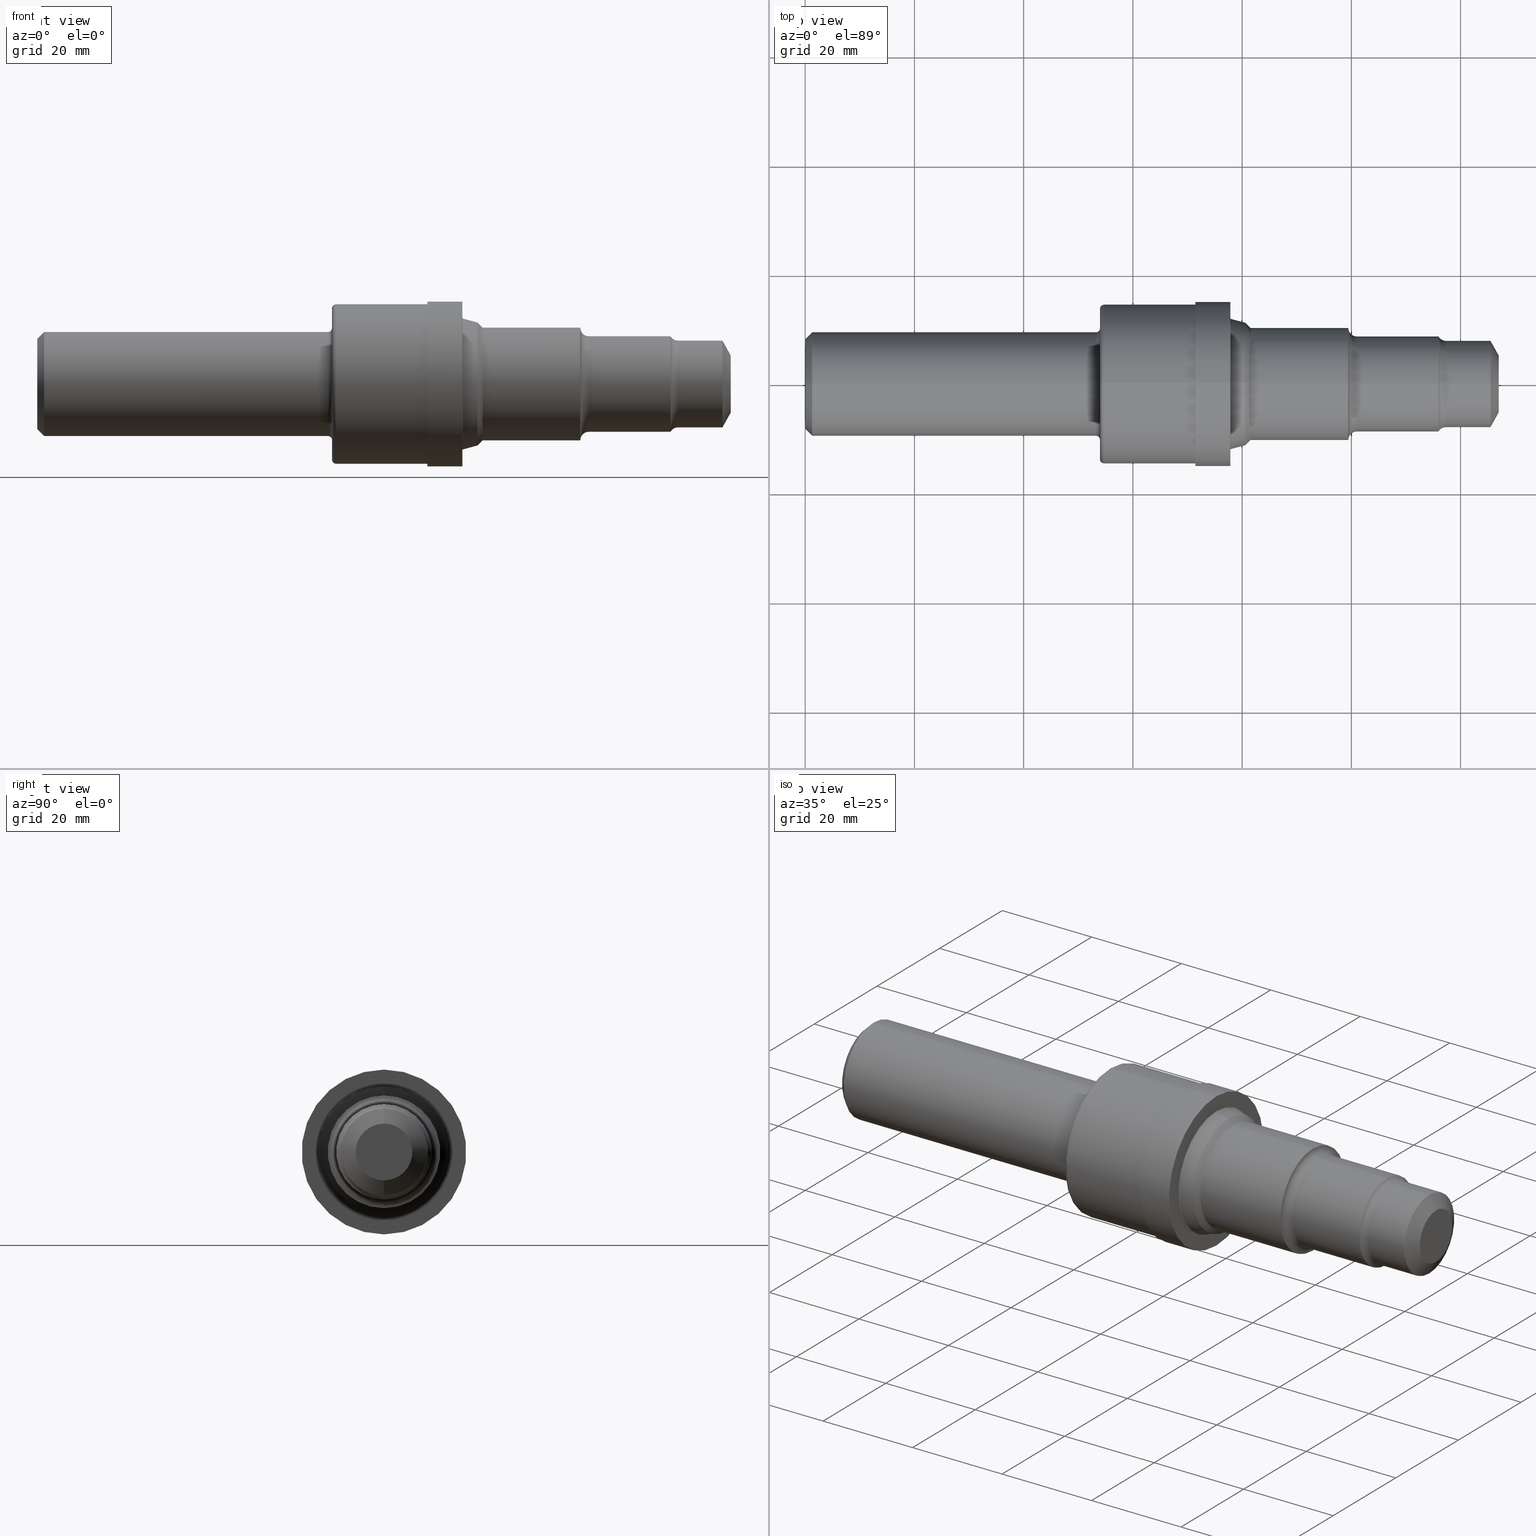
[diagram: canonical four-view strip — front | top / right | iso, engineering-drawing reading convention]
A machine part, canonical four-view strip (front | top / right | iso — engineering-drawing reading convention). The complete STEP part file that produces these views, byte-faithful:
ISO-10303-21;
HEADER;
FILE_DESCRIPTION (( 'STEP AP214' ),
    '1' );
FILE_NAME ('C-10-3-FINISH-X8.STEP',
    '2020-02-03T20:45:43',
    ( '' ),
    ( '' ),
    'SwSTEP 2.0',
    'SolidWorks 2018',
    '' );
FILE_SCHEMA (( 'AUTOMOTIVE_DESIGN' ));
ENDSEC;

DATA;
#1 = ADVANCED_FACE ( 'NONE', ( #759, #676 ), #279, .F. ) ;
#2 = DIRECTION ( 'NONE',  ( 1.000000000000000000, 0.0000000000000000000, 0.0000000000000000000 ) ) ;
#3 = CIRCLE ( 'NONE', #414, 0.3128999999999999559 ) ;
#4 = EDGE_LOOP ( 'NONE', ( #939, #760, #190, #421 ) ) ;
#5 = AXIS2_PLACEMENT_3D ( 'NONE', #913, #435, #122 ) ;
#6 = DIRECTION ( 'NONE',  ( 1.000000000000000000, 0.0000000000000000000, 0.0000000000000000000 ) ) ;
#7 = DIRECTION ( 'NONE',  ( -0.9659258262890689783, 0.0000000000000000000, 0.2588190451025179639 ) ) ;
#8 = CIRCLE ( 'NONE', #459, 0.03000000000000002318 ) ;
#9 = ORIENTED_EDGE ( 'NONE', *, *, #596, .T. ) ;
#10 = CARTESIAN_POINT ( 'NONE',  ( 5.000000000000000000, 3.169123441831430899E-17, -0.2046571346837141592 ) ) ;
#11 = EDGE_CURVE ( 'NONE', #188, #801, #167, .T. ) ;
#12 = CARTESIAN_POINT ( 'NONE',  ( 3.070558857161731048, 5.812574542524129798E-17, -0.4710105087126742474 ) ) ;
#13 = EDGE_LOOP ( 'NONE', ( #269, #431, #85, #46 ) ) ;
#14 = AXIS2_PLACEMENT_3D ( 'NONE', #563, #746, #871 ) ;
#15 = ORIENTED_EDGE ( 'NONE', *, *, #607, .T. ) ;
#16 = TOROIDAL_SURFACE ( 'NONE', #252, 0.4048500000000005428, 0.02999999999999998848 ) ;
#17 = CIRCLE ( 'NONE', #363, 0.06199999999999997874 ) ;
#18 = EDGE_LOOP ( 'NONE', ( #324, #934, #289, #104 ) ) ;
#19 = DIRECTION ( 'NONE',  ( -1.000000000000000000, -0.0000000000000000000, -0.0000000000000000000 ) ) ;
#20 = FACE_OUTER_BOUND ( 'NONE', #245, .T. ) ;
#21 = ORIENTED_EDGE ( 'NONE', *, *, #383, .T. ) ;
#22 = ORIENTED_EDGE ( 'NONE', *, *, #291, .T. ) ;
#23 = DIRECTION ( 'NONE',  ( 0.0000000000000000000, 0.0000000000000000000, 1.000000000000000000 ) ) ;
#24 =( NAMED_UNIT ( * ) PLANE_ANGLE_UNIT ( ) SI_UNIT ( $, .RADIAN. ) );
#25 = ORIENTED_EDGE ( 'NONE', *, *, #383, .F. ) ;
#26 = LINE ( 'NONE', #401, #590 ) ;
#27 = CARTESIAN_POINT ( 'NONE',  ( 2.154999999999999805, 7.041719095097280140E-17, -0.5749999999999998446 ) ) ;
#28 = EDGE_CURVE ( 'NONE', #875, #697, #362, .T. ) ;
#29 = VERTEX_POINT ( 'NONE', #367 ) ;
#30 = CARTESIAN_POINT ( 'NONE',  ( 3.976998709663992493, 0.0000000000000000000, 0.3443999999999999284 ) ) ;
#31 = ORIENTED_EDGE ( 'NONE', *, *, #315, .T. ) ;
#32 =( LENGTH_UNIT ( ) NAMED_UNIT ( * ) SI_UNIT ( $, .METRE. ) );
#33 = ORIENTED_EDGE ( 'NONE', *, *, #398, .T. ) ;
#34 = CARTESIAN_POINT ( 'NONE',  ( 2.813000000000000167, 0.0000000000000000000, 0.5750000000000000666 ) ) ;
#35 = FACE_OUTER_BOUND ( 'NONE', #292, .T. ) ;
#36 = EDGE_LOOP ( 'NONE', ( #63, #458 ) ) ;
#37 = DIRECTION ( 'NONE',  ( -1.000000000000000000, -0.0000000000000000000, -0.0000000000000000000 ) ) ;
#38 = FILL_AREA_STYLE ('',( #587 ) ) ;
#39 = ORIENTED_EDGE ( 'NONE', *, *, #647, .T. ) ;
#40 = PRESENTATION_LAYER_ASSIGNMENT (  '', '', ( #93 ) ) ;
#41 = DIRECTION ( 'NONE',  ( 0.0000000000000000000, 0.0000000000000000000, 1.000000000000000000 ) ) ;
#42 = EDGE_LOOP ( 'NONE', ( #387, #48, #260, #774 ) ) ;
#43 = SURFACE_STYLE_USAGE ( .BOTH. , #846 ) ;
#44 = DIRECTION ( 'NONE',  ( -1.000000000000000000, -0.0000000000000000000, -0.0000000000000000000 ) ) ;
#45 = CONICAL_SURFACE ( 'NONE', #870, 0.4435614872174390433, 0.2617993877991466878 ) ;
#46 = ORIENTED_EDGE ( 'NONE', *, *, #575, .T. ) ;
#47 = EDGE_CURVE ( 'NONE', #595, #697, #916, .T. ) ;
#48 = ORIENTED_EDGE ( 'NONE', *, *, #811, .T. ) ;
#49 = UNCERTAINTY_MEASURE_WITH_UNIT (LENGTH_MEASURE( 1.000000000000000082E-05 ), #400, 'distance_accuracy_value', 'NONE');
#50 = VECTOR ( 'NONE', #695, 39.37007874015748854 ) ;
#51 = AXIS2_PLACEMENT_3D ( 'NONE', #477, #703, #309 ) ;
#52 = CARTESIAN_POINT ( 'NONE',  ( 0.0000000000000000000, 0.0000000000000000000, 0.4060000000000000275 ) ) ;
#53 = DIRECTION ( 'NONE',  ( -1.000000000000000000, -0.0000000000000000000, -0.0000000000000000000 ) ) ;
#54 = EDGE_CURVE ( 'NONE', #137, #134, #727, .T. ) ;
#55 = DIRECTION ( 'NONE',  ( -1.000000000000000000, -0.0000000000000000000, -0.0000000000000000000 ) ) ;
#56 = EDGE_LOOP ( 'NONE', ( #757, #91 ) ) ;
#57 = CARTESIAN_POINT ( 'NONE',  ( 2.125000000000000000, 0.5449999999999999289, 0.0000000000000000000 ) ) ;
#58 = EDGE_LOOP ( 'NONE', ( #282, #815, #837, #668 ) ) ;
#59 = ORIENTED_EDGE ( 'NONE', *, *, #11, .F. ) ;
#60 = VECTOR ( 'NONE', #868, 39.37007874015748854 ) ;
#61 = AXIS2_PLACEMENT_3D ( 'NONE', #669, #740, #296 ) ;
#62 = CARTESIAN_POINT ( 'NONE',  ( 0.0000000000000000000, 0.0000000000000000000, 0.0000000000000000000 ) ) ;
#63 = ORIENTED_EDGE ( 'NONE', *, *, #724, .T. ) ;
#64 = EDGE_CURVE ( 'NONE', #689, #597, #136, .T. ) ;
#65 = CARTESIAN_POINT ( 'NONE',  ( 3.072500000000000231, 0.0000000000000000000, 0.0000000000000000000 ) ) ;
#66 = CARTESIAN_POINT ( 'NONE',  ( 0.0000000000000000000, 3.831919834532067466E-17, -0.3128999999999999559 ) ) ;
#67 = ORIENTED_EDGE ( 'NONE', *, *, #369, .F. ) ;
#68 = DIMENSIONAL_EXPONENTS ( 1.000000000000000000, 0.0000000000000000000, 0.0000000000000000000, 0.0000000000000000000, 0.0000000000000000000, 0.0000000000000000000, 0.0000000000000000000 ) ;
#69 = VECTOR ( 'NONE', #133, 39.37007874015748143 ) ;
#70 = ORIENTED_EDGE ( 'NONE', *, *, #28, .F. ) ;
#71 = CARTESIAN_POINT ( 'NONE',  ( 0.0000000000000000000, 0.0000000000000000000, 0.0000000000000000000 ) ) ;
#72 = ORIENTED_EDGE ( 'NONE', *, *, #654, .T. ) ;
#73 = LINE ( 'NONE', #612, #50 ) ;
#74 = CARTESIAN_POINT ( 'NONE',  ( 0.05000000000000000278, 4.590588526603853748E-17, 0.3748500000000000165 ) ) ;
#75 = EDGE_CURVE ( 'NONE', #508, #432, #892, .T. ) ;
#76 = DIRECTION ( 'NONE',  ( 0.0000000000000000000, 0.0000000000000000000, 1.000000000000000000 ) ) ;
#77 =( CONVERSION_BASED_UNIT ( 'INCH', #900 ) LENGTH_UNIT ( ) NAMED_UNIT ( #456 ) );
#78 = CARTESIAN_POINT ( 'NONE',  ( 4.618979162646340342, 0.0000000000000000000, 0.3749000000000000665 ) ) ;
#79 = CARTESIAN_POINT ( 'NONE',  ( 3.173000000000000487, 0.0000000000000000000, 0.0000000000000000000 ) ) ;
#80 =( NAMED_UNIT ( * ) SI_UNIT ( $, .STERADIAN. ) SOLID_ANGLE_UNIT ( ) );
#81 = CARTESIAN_POINT ( 'NONE',  ( 2.125000000000000000, 0.0000000000000000000, 0.4048500000000005428 ) ) ;
#82 = VERTEX_POINT ( 'NONE', #883 ) ;
#83 = DIRECTION ( 'NONE',  ( -1.000000000000000000, -0.0000000000000000000, -0.0000000000000000000 ) ) ;
#84 = EDGE_CURVE ( 'NONE', #343, #825, #504, .T. ) ;
#85 = ORIENTED_EDGE ( 'NONE', *, *, #336, .T. ) ;
#86 = ORIENTED_EDGE ( 'NONE', *, *, #283, .F. ) ;
#87 = ORIENTED_EDGE ( 'NONE', *, *, #897, .F. ) ;
#88 = CIRCLE ( 'NONE', #733, 0.4060000000000000275 ) ;
#89 = AXIS2_PLACEMENT_3D ( 'NONE', #480, #572, #232 ) ;
#90 = CIRCLE ( 'NONE', #61, 0.007499999999999851404 ) ;
#91 = ORIENTED_EDGE ( 'NONE', *, *, #84, .F. ) ;
#92 = AXIS2_PLACEMENT_3D ( 'NONE', #62, #661, #500 ) ;
#93 = STYLED_ITEM ( 'NONE', ( #346 ), #397 ) ;
#94 = ORIENTED_EDGE ( 'NONE', *, *, #64, .F. ) ;
#95 = DIRECTION ( 'NONE',  ( 0.0000000000000000000, 0.0000000000000000000, 1.000000000000000000 ) ) ;
#96 = SURFACE_STYLE_FILL_AREA ( #38 ) ;
#97 = EDGE_CURVE ( 'NONE', #134, #207, #325, .T. ) ;
#98 = AXIS2_PLACEMENT_3D ( 'NONE', #619, #546, #787 ) ;
#99 = DIRECTION ( 'NONE',  ( 0.0000000000000000000, 0.0000000000000000000, 1.000000000000000000 ) ) ;
#100 = CARTESIAN_POINT ( 'NONE',  ( 0.0000000000000000000, 4.972066004538254721E-17, -0.4060000000000000275 ) ) ;
#101 = CARTESIAN_POINT ( 'NONE',  ( 2.094999999999999751, 4.957982566348065676E-17, -0.4048500000000005428 ) ) ;
#102 = CARTESIAN_POINT ( 'NONE',  ( 3.173000000000000487, 5.600138337028097266E-17, -0.4435614872174390433 ) ) ;
#103 = AXIS2_PLACEMENT_3D ( 'NONE', #65, #730, #361 ) ;
#104 = ORIENTED_EDGE ( 'NONE', *, *, #336, .F. ) ;
#105 = CYLINDRICAL_SURFACE ( 'NONE', #263, 0.4060000000000000275 ) ;
#106 = CARTESIAN_POINT ( 'NONE',  ( 4.618979162646340342, 0.0000000000000000000, 0.0000000000000000000 ) ) ;
#107 = CONICAL_SURFACE ( 'NONE', #51, 0.2046571346837141592, 1.064650843716543394 ) ;
#108 = DIRECTION ( 'NONE',  ( 0.0000000000000000000, -1.000000000000000000, 0.0000000000000000000 ) ) ;
#109 = CARTESIAN_POINT ( 'NONE',  ( 3.065000000000000391, 0.0000000000000000000, 0.0000000000000000000 ) ) ;
#110 = DIRECTION ( 'NONE',  ( -1.000000000000000000, -0.0000000000000000000, -0.0000000000000000000 ) ) ;
#111 = DIRECTION ( 'NONE',  ( 0.0000000000000000000, 0.0000000000000000000, 1.000000000000000000 ) ) ;
#112 = AXIS2_PLACEMENT_3D ( 'NONE', #920, #124, #941 ) ;
#113 = CARTESIAN_POINT ( 'NONE',  ( 4.618979162646340342, 4.591200850003427854E-17, -0.3749000000000000665 ) ) ;
#114 = DIRECTION ( 'NONE',  ( -1.000000000000000000, -0.0000000000000000000, -0.0000000000000000000 ) ) ;
#115 = LINE ( 'NONE', #502, #481 ) ;
#116 = EDGE_CURVE ( 'NONE', #470, #276, #115, .T. ) ;
#117 = EDGE_LOOP ( 'NONE', ( #827, #586, #246, #657 ) ) ;
#118 = CARTESIAN_POINT ( 'NONE',  ( 3.210561487217439502, 0.0000000000000000000, 0.4060000000000000275 ) ) ;
#119 = DIRECTION ( 'NONE',  ( 0.0000000000000000000, 0.0000000000000000000, 1.000000000000000000 ) ) ;
#120 = AXIS2_PLACEMENT_3D ( 'NONE', #370, #6, #802 ) ;
#121 = ORIENTED_EDGE ( 'NONE', *, *, #159, .T. ) ;
#122 = DIRECTION ( 'NONE',  ( 0.0000000000000000000, 0.0000000000000000000, 1.000000000000000000 ) ) ;
#123 = LINE ( 'NONE', #538, #877 ) ;
#124 = DIRECTION ( 'NONE',  ( -1.000000000000000000, -0.0000000000000000000, -0.0000000000000000000 ) ) ;
#125 = ADVANCED_FACE ( 'NONE', ( #688 ), #664, .T. ) ;
#126 = CARTESIAN_POINT ( 'NONE',  ( 0.0000000000000000000, 0.0000000000000000000, -0.3248500000000001386 ) ) ;
#127 = VECTOR ( 'NONE', #344, 39.37007874015748143 ) ;
#128 = ORIENTED_EDGE ( 'NONE', *, *, #75, .F. ) ;
#129 = FACE_OUTER_BOUND ( 'NONE', #58, .T. ) ;
#130 = DIRECTION ( 'NONE',  ( 0.0000000000000000000, 0.0000000000000000000, 1.000000000000000000 ) ) ;
#131 = DIRECTION ( 'NONE',  ( -1.000000000000000000, -0.0000000000000000000, -0.0000000000000000000 ) ) ;
#132 = CARTESIAN_POINT ( 'NONE',  ( 3.210561487217439502, 4.972066004538254721E-17, -0.4060000000000000275 ) ) ;
#133 = DIRECTION ( 'NONE',  ( -1.000000000000000000, -0.0000000000000000000, -0.0000000000000000000 ) ) ;
#134 = VERTEX_POINT ( 'NONE', #718 ) ;
#135 = CARTESIAN_POINT ( 'NONE',  ( 2.154999999999999805, 6.674325055353073759E-17, -0.5449999999999999289 ) ) ;
#136 = LINE ( 'NONE', #454, #709 ) ;
#137 = VERTEX_POINT ( 'NONE', #592 ) ;
#138 = CARTESIAN_POINT ( 'NONE',  ( 0.0000000000000000000, 0.0000000000000000000, 0.0000000000000000000 ) ) ;
#139 = ORIENTED_EDGE ( 'NONE', *, *, #291, .F. ) ;
#140 = ADVANCED_FACE ( 'NONE', ( #299 ), #280, .T. ) ;
#141 = AXIS2_PLACEMENT_3D ( 'NONE', #371, #738, #852 ) ;
#142 = CIRCLE ( 'NONE', #98, 0.3443999999999999284 ) ;
#143 = COLOUR_RGB ( '',0.7529411764705882248, 0.7529411764705882248, 0.7529411764705882248 ) ;
#144 = AXIS2_PLACEMENT_3D ( 'NONE', #692, #258, #769 ) ;
#145 = DIRECTION ( 'NONE',  ( 0.0000000000000000000, 0.0000000000000000000, 1.000000000000000000 ) ) ;
#146 = EDGE_CURVE ( 'NONE', #734, #597, #462, .T. ) ;
#147 = DIRECTION ( 'NONE',  ( -1.000000000000000000, -0.0000000000000000000, -0.0000000000000000000 ) ) ;
#148 = DIRECTION ( 'NONE',  ( 0.0000000000000000000, -1.000000000000000000, 0.0000000000000000000 ) ) ;
#149 = DIRECTION ( 'NONE',  ( 0.0000000000000000000, 0.0000000000000000000, 1.000000000000000000 ) ) ;
#150 =( GEOMETRIC_REPRESENTATION_CONTEXT ( 3 ) GLOBAL_UNCERTAINTY_ASSIGNED_CONTEXT ( ( #49 ) ) GLOBAL_UNIT_ASSIGNED_CONTEXT ( ( #400, #382, #919 ) ) REPRESENTATION_CONTEXT ( 'NONE', 'WORKASPACE' ) );
#151 = DIRECTION ( 'NONE',  ( -1.000000000000000000, -0.0000000000000000000, -0.0000000000000000000 ) ) ;
#152 = LINE ( 'NONE', #886, #904 ) ;
#153 = ORIENTED_EDGE ( 'NONE', *, *, #561, .T. ) ;
#154 = CARTESIAN_POINT ( 'NONE',  ( 5.000000000000000000, 0.0000000000000000000, 0.2046571346837141592 ) ) ;
#155 = DIRECTION ( 'NONE',  ( 0.0000000000000000000, 0.0000000000000000000, -1.000000000000000000 ) ) ;
#156 = DIRECTION ( 'NONE',  ( 0.0000000000000000000, 0.0000000000000000000, 1.000000000000000000 ) ) ;
#157 = CIRCLE ( 'NONE', #924, 0.06200000000000011752 ) ;
#158 = CARTESIAN_POINT ( 'NONE',  ( 3.065000000000000391, 7.274401986935277967E-17, -0.5939999999999999725 ) ) ;
#159 = EDGE_CURVE ( 'NONE', #843, #276, #90, .T. ) ;
#160 = CIRCLE ( 'NONE', #465, 0.4435614872174390433 ) ;
#161 = DIRECTION ( 'NONE',  ( 0.0000000000000000000, 0.0000000000000000000, 1.000000000000000000 ) ) ;
#162 = CARTESIAN_POINT ( 'NONE',  ( 0.0000000000000000000, 0.0000000000000000000, 0.0000000000000000000 ) ) ;
#163 = DIRECTION ( 'NONE',  ( 0.0000000000000000000, -1.000000000000000000, 0.0000000000000000000 ) ) ;
#164 = ORIENTED_EDGE ( 'NONE', *, *, #268, .T. ) ;
#165 = ADVANCED_FACE ( 'NONE', ( #527 ), #45, .T. ) ;
#166 = AXIS2_PLACEMENT_3D ( 'NONE', #878, #83, #161 ) ;
#167 = LINE ( 'NONE', #311, #555 ) ;
#168 = VERTEX_POINT ( 'NONE', #209 ) ;
#169 = CARTESIAN_POINT ( 'NONE',  ( 2.125000000000000000, 0.0000000000000000000, 0.0000000000000000000 ) ) ;
#170 = ORIENTED_EDGE ( 'NONE', *, *, #927, .T. ) ;
#171 = FACE_OUTER_BOUND ( 'NONE', #551, .T. ) ;
#172 = ADVANCED_FACE ( 'NONE', ( #636 ), #836, .T. ) ;
#173 = CONICAL_SURFACE ( 'NONE', #392, 0.4060000000000000275, 0.7853981633974482790 ) ;
#174 = EDGE_LOOP ( 'NONE', ( #39, #287 ) ) ;
#175 = DIRECTION ( 'NONE',  ( 0.0000000000000000000, 0.0000000000000000000, 1.000000000000000000 ) ) ;
#176 = EDGE_CURVE ( 'NONE', #189, #893, #438, .T. ) ;
#177 = DIRECTION ( 'NONE',  ( -1.000000000000000000, -0.0000000000000000000, -0.0000000000000000000 ) ) ;
#178 = CIRCLE ( 'NONE', #273, 0.007499999999999851404 ) ;
#179 = AXIS2_PLACEMENT_3D ( 'NONE', #138, #880, #554 ) ;
#180 = ADVANCED_FACE ( 'NONE', ( #856 ), #420, .T. ) ;
#181 = ORIENTED_EDGE ( 'NONE', *, *, #351, .F. ) ;
#182 = CIRCLE ( 'NONE', #569, 0.02999999999999995379 ) ;
#183 =( LENGTH_UNIT ( ) NAMED_UNIT ( * ) SI_UNIT ( $, .METRE. ) );
#184 = DIRECTION ( 'NONE',  ( -1.000000000000000000, -0.0000000000000000000, -0.0000000000000000000 ) ) ;
#185 = EDGE_CURVE ( 'NONE', #137, #712, #609, .T. ) ;
#186 = ORIENTED_EDGE ( 'NONE', *, *, #47, .T. ) ;
#187 = ADVANCED_FACE ( 'NONE', ( #255 ), #583, .T. ) ;
#188 = VERTEX_POINT ( 'NONE', #298 ) ;
#189 = VERTEX_POINT ( 'NONE', #355 ) ;
#190 = ORIENTED_EDGE ( 'NONE', *, *, #478, .T. ) ;
#191 = CARTESIAN_POINT ( 'NONE',  ( 2.125000000000000000, 0.0000000000000000000, 0.5449999999999999289 ) ) ;
#192 = AXIS2_PLACEMENT_3D ( 'NONE', #553, #476, #111 ) ;
#193 = PLANE ( 'NONE',  #179 ) ;
#194 = ADVANCED_FACE ( 'NONE', ( #20 ), #205, .T. ) ;
#195 = ORIENTED_EDGE ( 'NONE', *, *, #654, .F. ) ;
#196 = FACE_OUTER_BOUND ( 'NONE', #4, .T. ) ;
#197 = CIRCLE ( 'NONE', #854, 0.4060000000000000275 ) ;
#198 = ADVANCED_FACE ( 'NONE', ( #395 ), #771, .T. ) ;
#199 = DIRECTION ( 'NONE',  ( 0.7071067811865483499, 8.659560562354922997E-17, 0.7071067811865465735 ) ) ;
#200 = DIRECTION ( 'NONE',  ( -1.000000000000000000, -0.0000000000000000000, -0.0000000000000000000 ) ) ;
#201 = PRODUCT_RELATED_PRODUCT_CATEGORY ( 'part', '', ( #228 ) ) ;
#202 = ADVANCED_FACE ( 'NONE', ( #792 ), #930, .T. ) ;
#203 = DIRECTION ( 'NONE',  ( -0.0000000000000000000, 1.000000000000000000, 1.224646799147353207E-16 ) ) ;
#204 = CARTESIAN_POINT ( 'NONE',  ( 4.565000000000000391, 0.0000000000000000000, 0.0000000000000000000 ) ) ;
#205 = CYLINDRICAL_SURFACE ( 'NONE', #694, 0.4060000000000000275 ) ;
#206 = EDGE_CURVE ( 'NONE', #835, #801, #178, .T. ) ;
#207 = VERTEX_POINT ( 'NONE', #321 ) ;
#208 =( NAMED_UNIT ( * ) PLANE_ANGLE_UNIT ( ) SI_UNIT ( $, .RADIAN. ) );
#209 = CARTESIAN_POINT ( 'NONE',  ( 3.915000000000000036, 4.972066004538254721E-17, -0.4060000000000000275 ) ) ;
#210 = ORIENTED_EDGE ( 'NONE', *, *, #243, .T. ) ;
#211 = CIRCLE ( 'NONE', #531, 0.2046571346837141592 ) ;
#212 = CARTESIAN_POINT ( 'NONE',  ( 3.976998709663992493, 0.0000000000000000000, 0.0000000000000000000 ) ) ;
#213 = ADVANCED_FACE ( 'NONE', ( #374 ), #810, .F. ) ;
#214 = DIRECTION ( 'NONE',  ( 0.0000000000000000000, 0.0000000000000000000, 1.000000000000000000 ) ) ;
#215 = CARTESIAN_POINT ( 'NONE',  ( 0.05000000000000000278, 0.0000000000000000000, 0.0000000000000000000 ) ) ;
#216 = ADVANCED_FACE ( 'NONE', ( #744 ), #353, .T. ) ;
#217 = ORIENTED_EDGE ( 'NONE', *, *, #860, .T. ) ;
#218 = DIRECTION ( 'NONE',  ( -1.000000000000000000, -0.0000000000000000000, -0.0000000000000000000 ) ) ;
#219 = ORIENTED_EDGE ( 'NONE', *, *, #784, .F. ) ;
#220 = AXIS2_PLACEMENT_3D ( 'NONE', #624, #778, #704 ) ;
#221 = DIRECTION ( 'NONE',  ( -1.000000000000000000, -0.0000000000000000000, -0.0000000000000000000 ) ) ;
#222 = ADVANCED_FACE ( 'NONE', ( #234 ), #603, .T. ) ;
#223 = AXIS2_PLACEMENT_3D ( 'NONE', #672, #429, #416 ) ;
#224 = ORIENTED_EDGE ( 'NONE', *, *, #478, .F. ) ;
#225 = VECTOR ( 'NONE', #794, 39.37007874015748854 ) ;
#226 = CONICAL_SURFACE ( 'NONE', #641, 0.2046571346837141592, 1.064650843716543394 ) ;
#227 = DIRECTION ( 'NONE',  ( -1.000000000000000000, -0.0000000000000000000, -0.0000000000000000000 ) ) ;
#228 = PRODUCT ( 'C-10-3-FINISH-X8', 'C-10-3-FINISH-X8', '', ( #354 ) ) ;
#229 = CARTESIAN_POINT ( 'NONE',  ( 0.0000000000000000000, 0.0000000000000000000, 0.5749999999999999556 ) ) ;
#230 = ADVANCED_FACE ( 'NONE', ( #565 ), #226, .T. ) ;
#231 = DIRECTION ( 'NONE',  ( 0.0000000000000000000, 0.0000000000000000000, 1.000000000000000000 ) ) ;
#232 = DIRECTION ( 'NONE',  ( 0.0000000000000000000, 0.0000000000000000000, 1.000000000000000000 ) ) ;
#233 = DIRECTION ( 'NONE',  ( -1.000000000000000000, -0.0000000000000000000, -0.0000000000000000000 ) ) ;
#234 = FACE_OUTER_BOUND ( 'NONE', #42, .T. ) ;
#235 = ORIENTED_EDGE ( 'NONE', *, *, #696, .F. ) ;
#236 = CARTESIAN_POINT ( 'NONE',  ( 4.940000000000000391, 0.0000000000000000000, 0.0000000000000000000 ) ) ;
#237 = DIRECTION ( 'NONE',  ( -1.000000000000000000, -0.0000000000000000000, -0.0000000000000000000 ) ) ;
#238 = VECTOR ( 'NONE', #614, 39.37007874015748143 ) ;
#239 = ORIENTED_EDGE ( 'NONE', *, *, #588, .T. ) ;
#240 = DIRECTION ( 'NONE',  ( -0.0000000000000000000, 0.0000000000000000000, 1.000000000000000000 ) ) ;
#241 = DIRECTION ( 'NONE',  ( -1.000000000000000000, -0.0000000000000000000, -0.0000000000000000000 ) ) ;
#242 = ORIENTED_EDGE ( 'NONE', *, *, #97, .F. ) ;
#243 = EDGE_CURVE ( 'NONE', #343, #137, #152, .T. ) ;
#244 = ORIENTED_EDGE ( 'NONE', *, *, #54, .T. ) ;
#245 = EDGE_LOOP ( 'NONE', ( #217, #526, #404, #942 ) ) ;
#246 = ORIENTED_EDGE ( 'NONE', *, *, #724, .F. ) ;
#247 = DIRECTION ( 'NONE',  ( 0.0000000000000000000, 0.0000000000000000000, 1.000000000000000000 ) ) ;
#248 = FACE_OUTER_BOUND ( 'NONE', #543, .T. ) ;
#249 = AXIS2_PLACEMENT_3D ( 'NONE', #340, #850, #940 ) ;
#250 = DIRECTION ( 'NONE',  ( 0.0000000000000000000, 0.0000000000000000000, 1.000000000000000000 ) ) ;
#251 = ORIENTED_EDGE ( 'NONE', *, *, #464, .F. ) ;
#252 = AXIS2_PLACEMENT_3D ( 'NONE', #926, #656, #646 ) ;
#253 = ORIENTED_EDGE ( 'NONE', *, *, #11, .T. ) ;
#254 = AXIS2_PLACEMENT_3D ( 'NONE', #776, #331, #841 ) ;
#255 = FACE_OUTER_BOUND ( 'NONE', #894, .T. ) ;
#256 = ORIENTED_EDGE ( 'NONE', *, *, #517, .T. ) ;
#257 = DIRECTION ( 'NONE',  ( -1.000000000000000000, -0.0000000000000000000, -0.0000000000000000000 ) ) ;
#258 = DIRECTION ( 'NONE',  ( -1.000000000000000000, -0.0000000000000000000, -0.0000000000000000000 ) ) ;
#259 = EDGE_LOOP ( 'NONE', ( #620, #210, #914, #864 ) ) ;
#260 = ORIENTED_EDGE ( 'NONE', *, *, #684, .T. ) ;
#261 = EDGE_CURVE ( 'NONE', #712, #207, #3, .T. ) ;
#262 = TOROIDAL_SURFACE ( 'NONE', #806, 0.5449999999999999289, 0.02999999999999995379 ) ;
#263 = AXIS2_PLACEMENT_3D ( 'NONE', #917, #37, #41 ) ;
#264 = CARTESIAN_POINT ( 'NONE',  ( 3.070558857161731048, 0.0000000000000000000, 0.4710105087126742474 ) ) ;
#265 = CARTESIAN_POINT ( 'NONE',  ( 2.813000000000000167, 0.0000000000000000000, 0.5939999999999999725 ) ) ;
#266 = PRODUCT_DEFINITION_CONTEXT ( 'detailed design', #393, 'design' ) ;
#267 = DIRECTION ( 'NONE',  ( 0.0000000000000000000, 0.0000000000000000000, 1.000000000000000000 ) ) ;
#268 = EDGE_CURVE ( 'NONE', #758, #508, #17, .T. ) ;
#269 = ORIENTED_EDGE ( 'NONE', *, *, #628, .F. ) ;
#270 = CARTESIAN_POINT ( 'NONE',  ( 3.070558857161731048, 0.0000000000000000000, 0.0000000000000000000 ) ) ;
#271 = ORIENTED_EDGE ( 'NONE', *, *, #47, .F. ) ;
#272 = LINE ( 'NONE', #132, #60 ) ;
#273 = AXIS2_PLACEMENT_3D ( 'NONE', #683, #163, #600 ) ;
#274 = DIRECTION ( 'NONE',  ( 0.0000000000000000000, 0.0000000000000000000, 1.000000000000000000 ) ) ;
#275 = ORIENTED_EDGE ( 'NONE', *, *, #176, .T. ) ;
#276 = VERTEX_POINT ( 'NONE', #12 ) ;
#277 = CARTESIAN_POINT ( 'NONE',  ( 2.125000000000000000, 0.0000000000000000000, 0.0000000000000000000 ) ) ;
#278 = ORIENTED_EDGE ( 'NONE', *, *, #97, .T. ) ;
#279 = PLANE ( 'NONE',  #629 ) ;
#280 = CYLINDRICAL_SURFACE ( 'NONE', #912, 0.3443999999999999284 ) ;
#281 = AXIS2_PLACEMENT_3D ( 'NONE', #57, #2, #579 ) ;
#282 = ORIENTED_EDGE ( 'NONE', *, *, #398, .F. ) ;
#283 = EDGE_CURVE ( 'NONE', #432, #508, #578, .T. ) ;
#284 = CARTESIAN_POINT ( 'NONE',  ( 0.05000000000000000278, 4.590588526603853748E-17, 0.3748500000000000165 ) ) ;
#285 = ORIENTED_EDGE ( 'NONE', *, *, #682, .F. ) ;
#286 = CLOSED_SHELL ( 'NONE', ( #230, #632, #743, #140, #790, #194, #650, #165, #652, #180, #198, #731, #737, #216, #222, #645, #673, #660, #751, #715, #413, #125, #640, #667, #1, #723, #202, #295, #630, #213, #172, #944, #187, #658, #749 ) ) ;
#287 = ORIENTED_EDGE ( 'NONE', *, *, #430, .T. ) ;
#288 = VERTEX_POINT ( 'NONE', #754 ) ;
#289 = ORIENTED_EDGE ( 'NONE', *, *, #261, .T. ) ;
#290 = DIRECTION ( 'NONE',  ( -0.0000000000000000000, 0.0000000000000000000, 1.000000000000000000 ) ) ;
#291 = EDGE_CURVE ( 'NONE', #843, #835, #412, .T. ) ;
#292 = EDGE_LOOP ( 'NONE', ( #181, #642, #15, #224 ) ) ;
#293 = CIRCLE ( 'NONE', #89, 0.3748500000000000165 ) ;
#294 = DIRECTION ( 'NONE',  ( -1.000000000000000000, -0.0000000000000000000, -0.0000000000000000000 ) ) ;
#295 = ADVANCED_FACE ( 'NONE', ( #786 ), #173, .T. ) ;
#296 = DIRECTION ( 'NONE',  ( 0.0000000000000000000, -1.224646799147351975E-16, 1.000000000000000000 ) ) ;
#297 = CARTESIAN_POINT ( 'NONE',  ( 0.05000000000000000278, 0.0000000000000000000, -0.3748500000000000165 ) ) ;
#298 = CARTESIAN_POINT ( 'NONE',  ( 3.173000000000000487, 0.0000000000000000000, 0.4435614872174390433 ) ) ;
#299 = FACE_OUTER_BOUND ( 'NONE', #505, .T. ) ;
#300 = ORIENTED_EDGE ( 'NONE', *, *, #756, .F. ) ;
#301 = EDGE_LOOP ( 'NONE', ( #450, #239, #798, #618 ) ) ;
#302 = AXIS2_PLACEMENT_3D ( 'NONE', #169, #604, #95 ) ;
#303 = ORIENTED_EDGE ( 'NONE', *, *, #833, .F. ) ;
#304 = FACE_OUTER_BOUND ( 'NONE', #13, .T. ) ;
#305 = DIRECTION ( 'NONE',  ( -1.000000000000000000, -0.0000000000000000000, -0.0000000000000000000 ) ) ;
#306 = DIRECTION ( 'NONE',  ( -1.000000000000000000, -0.0000000000000000000, -0.0000000000000000000 ) ) ;
#307 = CARTESIAN_POINT ( 'NONE',  ( 0.0000000000000000000, 0.0000000000000000000, 0.3128999999999999559 ) ) ;
#308 = EDGE_CURVE ( 'NONE', #333, #357, #560, .T. ) ;
#309 = DIRECTION ( 'NONE',  ( 0.0000000000000000000, 0.0000000000000000000, 1.000000000000000000 ) ) ;
#310 = DIRECTION ( 'NONE',  ( 0.0000000000000000000, 0.0000000000000000000, 1.000000000000000000 ) ) ;
#311 = CARTESIAN_POINT ( 'NONE',  ( 3.173000000000000487, 0.0000000000000000000, 0.4435614872174390433 ) ) ;
#312 = APPLICATION_CONTEXT ( 'automotive_design' ) ;
#313 = CARTESIAN_POINT ( 'NONE',  ( 2.094999999999999751, 0.0000000000000000000, 0.0000000000000000000 ) ) ;
#314 = DIRECTION ( 'NONE',  ( 1.000000000000000000, 0.0000000000000000000, 0.0000000000000000000 ) ) ;
#315 = EDGE_CURVE ( 'NONE', #168, #758, #197, .T. ) ;
#316 = AXIS2_PLACEMENT_3D ( 'NONE', #515, #855, #436 ) ;
#317 = CIRCLE ( 'NONE', #457, 0.5449999999999999289 ) ;
#318 = VERTEX_POINT ( 'NONE', #81 ) ;
#319 = FACE_OUTER_BOUND ( 'NONE', #301, .T. ) ;
#320 = DIRECTION ( 'NONE',  ( 1.000000000000000000, 0.0000000000000000000, 0.0000000000000000000 ) ) ;
#321 = CARTESIAN_POINT ( 'NONE',  ( 4.618979162646340342, 0.0000000000000000000, 0.3128999999999999559 ) ) ;
#322 = PRESENTATION_LAYER_ASSIGNMENT (  '', '', ( #639 ) ) ;
#323 = AXIS2_PLACEMENT_3D ( 'NONE', #442, #881, #310 ) ;
#324 = ORIENTED_EDGE ( 'NONE', *, *, #176, .F. ) ;
#325 = LINE ( 'NONE', #307, #873 ) ;
#326 = ORIENTED_EDGE ( 'NONE', *, *, #684, .F. ) ;
#327 = ORIENTED_EDGE ( 'NONE', *, *, #116, .T. ) ;
#328 = FILL_AREA_STYLE ('',( #390 ) ) ;
#329 = CARTESIAN_POINT ( 'NONE',  ( 2.154999999999999805, 0.0000000000000000000, 0.0000000000000000000 ) ) ;
#330 = APPLICATION_PROTOCOL_DEFINITION ( 'draft international standard', 'automotive_design', 1998, #312 ) ;
#331 = DIRECTION ( 'NONE',  ( -1.000000000000000000, -0.0000000000000000000, -0.0000000000000000000 ) ) ;
#332 = LINE ( 'NONE', #154, #127 ) ;
#333 = VERTEX_POINT ( 'NONE', #158 ) ;
#334 = CIRCLE ( 'NONE', #316, 0.3748500000000005161 ) ;
#335 = CARTESIAN_POINT ( 'NONE',  ( 2.813000000000000167, 0.0000000000000000000, 0.0000000000000000000 ) ) ;
#336 = EDGE_CURVE ( 'NONE', #893, #207, #389, .T. ) ;
#337 = DIRECTION ( 'NONE',  ( -1.000000000000000000, -0.0000000000000000000, -0.0000000000000000000 ) ) ;
#338 = CARTESIAN_POINT ( 'NONE',  ( 4.618979162646340342, 0.0000000000000000000, 0.0000000000000000000 ) ) ;
#339 = EDGE_LOOP ( 'NONE', ( #235, #256, #536, #300 ) ) ;
#340 = CARTESIAN_POINT ( 'NONE',  ( 0.05000000000000000278, 0.0000000000000000000, 0.0000000000000000000 ) ) ;
#341 = VECTOR ( 'NONE', #507, 39.37007874015748143 ) ;
#342 = DIRECTION ( 'NONE',  ( -1.000000000000000000, -0.0000000000000000000, -0.0000000000000000000 ) ) ;
#343 = VERTEX_POINT ( 'NONE', #10 ) ;
#344 = DIRECTION ( 'NONE',  ( -0.4848096202463349491, 0.0000000000000000000, 0.8746197071393968514 ) ) ;
#345 = CIRCLE ( 'NONE', #498, 0.03000000000000002318 ) ;
#346 = PRESENTATION_STYLE_ASSIGNMENT (( #394 ) ) ;
#347 = AXIS2_PLACEMENT_3D ( 'NONE', #807, #426, #484 ) ;
#348 = AXIS2_PLACEMENT_3D ( 'NONE', #523, #762, #250 ) ;
#349 = DIRECTION ( 'NONE',  ( 0.0000000000000000000, 0.0000000000000000000, 1.000000000000000000 ) ) ;
#350 = APPLICATION_PROTOCOL_DEFINITION ( 'draft international standard', 'automotive_design', 1998, #393 ) ;
#351 = EDGE_CURVE ( 'NONE', #653, #689, #368, .T. ) ;
#352 = CARTESIAN_POINT ( 'NONE',  ( 0.0000000000000000000, 0.0000000000000000000, 0.0000000000000000000 ) ) ;
#353 = CYLINDRICAL_SURFACE ( 'NONE', #503, 0.3748500000000002386 ) ;
#354 = PRODUCT_CONTEXT ( 'NONE', #312, 'mechanical' ) ;
#355 = CARTESIAN_POINT ( 'NONE',  ( 4.565000000000000391, 4.217683576263483488E-17, -0.3443999999999999284 ) ) ;
#356 = CIRCLE ( 'NONE', #948, 0.5939999999999999725 ) ;
#357 = VERTEX_POINT ( 'NONE', #516 ) ;
#358 = DIRECTION ( 'NONE',  ( -1.000000000000000000, -0.0000000000000000000, -0.0000000000000000000 ) ) ;
#359 = ORIENTED_EDGE ( 'NONE', *, *, #185, .T. ) ;
#360 = CARTESIAN_POINT ( 'NONE',  ( 4.940000000000000391, 0.0000000000000000000, 0.0000000000000000000 ) ) ;
#361 = DIRECTION ( 'NONE',  ( 0.0000000000000000000, 0.0000000000000000000, 1.000000000000000000 ) ) ;
#362 = CIRCLE ( 'NONE', #576, 0.5749999999999998446 ) ;
#363 = AXIS2_PLACEMENT_3D ( 'NONE', #823, #148, #585 ) ;
#364 = DIRECTION ( 'NONE',  ( -1.000000000000000000, -0.0000000000000000000, -0.0000000000000000000 ) ) ;
#365 = EDGE_LOOP ( 'NONE', ( #858, #33, #326, #94 ) ) ;
#366 = CIRCLE ( 'NONE', #220, 0.06199999999999997874 ) ;
#367 = CARTESIAN_POINT ( 'NONE',  ( 2.125000000000000000, 6.858022075225177566E-17, -0.5449999999999999289 ) ) ;
#368 = CIRCLE ( 'NONE', #582, 0.3748500000000005161 ) ;
#369 = EDGE_CURVE ( 'NONE', #288, #333, #946, .T. ) ;
#370 = CARTESIAN_POINT ( 'NONE',  ( 2.813000000000000167, 0.5750000000000000666, 0.0000000000000000000 ) ) ;
#371 = CARTESIAN_POINT ( 'NONE',  ( 2.154999999999999805, 0.0000000000000000000, 0.5449999999999999289 ) ) ;
#372 = DIRECTION ( 'NONE',  ( 0.0000000000000000000, 0.0000000000000000000, 1.000000000000000000 ) ) ;
#373 = CARTESIAN_POINT ( 'NONE',  ( 3.065000000000000391, 0.5939999999999999725, 0.0000000000000000000 ) ) ;
#374 = FACE_OUTER_BOUND ( 'NONE', #936, .T. ) ;
#375 = DIRECTION ( 'NONE',  ( 0.0000000000000000000, 0.0000000000000000000, 1.000000000000000000 ) ) ;
#376 = EDGE_CURVE ( 'NONE', #318, #82, #923, .T. ) ;
#377 = DIRECTION ( 'NONE',  ( -1.000000000000000000, -0.0000000000000000000, -0.0000000000000000000 ) ) ;
#378 = ORIENTED_EDGE ( 'NONE', *, *, #185, .F. ) ;
#379 = CARTESIAN_POINT ( 'NONE',  ( 4.565000000000000391, 0.0000000000000000000, 0.3443999999999999284 ) ) ;
#380 = CIRCLE ( 'NONE', #479, 0.4048500000000005428 ) ;
#381 = DIRECTION ( 'NONE',  ( -1.000000000000000000, -0.0000000000000000000, -0.0000000000000000000 ) ) ;
#382 =( NAMED_UNIT ( * ) PLANE_ANGLE_UNIT ( ) SI_UNIT ( $, .RADIAN. ) );
#383 = EDGE_CURVE ( 'NONE', #801, #276, #736, .T. ) ;
#384 = CARTESIAN_POINT ( 'NONE',  ( 0.05000000000000000278, 0.0000000000000000000, 0.0000000000000000000 ) ) ;
#385 = ORIENTED_EDGE ( 'NONE', *, *, #54, .F. ) ;
#386 = ORIENTED_EDGE ( 'NONE', *, *, #675, .T. ) ;
#387 = ORIENTED_EDGE ( 'NONE', *, *, #788, .F. ) ;
#388 = FACE_OUTER_BOUND ( 'NONE', #18, .T. ) ;
#389 = CIRCLE ( 'NONE', #440, 0.06200000000000011752 ) ;
#390 = FILL_AREA_STYLE_COLOUR ( '', #143 ) ;
#391 = AXIS2_PLACEMENT_3D ( 'NONE', #338, #568, #911 ) ;
#392 = AXIS2_PLACEMENT_3D ( 'NONE', #832, #306, #372 ) ;
#393 = APPLICATION_CONTEXT ( 'automotive_design' ) ;
#394 = SURFACE_STYLE_USAGE ( .BOTH. , #838 ) ;
#395 = FACE_OUTER_BOUND ( 'NONE', #829, .T. ) ;
#396 = EDGE_LOOP ( 'NONE', ( #153, #359, #529, #242 ) ) ;
#397 = MANIFOLD_SOLID_BREP ( 'D47BD350-F730-4735-B656-88719BABE2AB-GAAFaceID18', #286 ) ;
#398 = EDGE_CURVE ( 'NONE', #653, #734, #644, .T. ) ;
#399 = CIRCLE ( 'NONE', #711, 0.5750000000000000666 ) ;
#400 =( CONVERSION_BASED_UNIT ( 'INCH', #643 ) LENGTH_UNIT ( ) NAMED_UNIT ( #68 ) );
#401 = CARTESIAN_POINT ( 'NONE',  ( 0.0000000000000000000, 0.0000000000000000000, 0.3443999999999999284 ) ) ;
#402 = EDGE_CURVE ( 'NONE', #601, #734, #73, .T. ) ;
#403 = DIRECTION ( 'NONE',  ( 0.0000000000000000000, 0.0000000000000000000, 1.000000000000000000 ) ) ;
#404 = ORIENTED_EDGE ( 'NONE', *, *, #675, .F. ) ;
#405 = VERTEX_POINT ( 'NONE', #773 ) ;
#406 = DIRECTION ( 'NONE',  ( 0.0000000000000000000, 0.0000000000000000000, 1.000000000000000000 ) ) ;
#407 = DIRECTION ( 'NONE',  ( 0.0000000000000000000, 0.0000000000000000000, 1.000000000000000000 ) ) ;
#408 = ORIENTED_EDGE ( 'NONE', *, *, #728, .F. ) ;
#409 = DIRECTION ( 'NONE',  ( -1.000000000000000000, -0.0000000000000000000, -0.0000000000000000000 ) ) ;
#410 = AXIS2_PLACEMENT_3D ( 'NONE', #863, #506, #349 ) ;
#411 = LINE ( 'NONE', #511, #225 ) ;
#412 = CIRCLE ( 'NONE', #663, 0.4782549524098421156 ) ;
#413 = ADVANCED_FACE ( 'NONE', ( #816 ), #262, .T. ) ;
#414 = AXIS2_PLACEMENT_3D ( 'NONE', #677, #241, #742 ) ;
#415 = CARTESIAN_POINT ( 'NONE',  ( 0.0000000000000000000, 7.041719095097280140E-17, -0.5749999999999999556 ) ) ;
#416 = DIRECTION ( 'NONE',  ( 0.0000000000000000000, 0.0000000000000000000, 1.000000000000000000 ) ) ;
#417 = DIRECTION ( 'NONE',  ( -1.000000000000000000, -0.0000000000000000000, -0.0000000000000000000 ) ) ;
#418 = EDGE_CURVE ( 'NONE', #168, #648, #424, .T. ) ;
#419 = CARTESIAN_POINT ( 'NONE',  ( 5.000000000000000000, 0.2046571346837141592, 0.0000000000000000000 ) ) ;
#420 = CYLINDRICAL_SURFACE ( 'NONE', #223, 0.5939999999999999725 ) ;
#421 = ORIENTED_EDGE ( 'NONE', *, *, #376, .T. ) ;
#422 = DIRECTION ( 'NONE',  ( 0.0000000000000000000, 0.0000000000000000000, 1.000000000000000000 ) ) ;
#423 = EDGE_LOOP ( 'NONE', ( #865, #303, #485, #611 ) ) ;
#424 = LINE ( 'NONE', #100, #238 ) ;
#425 = AXIS2_PLACEMENT_3D ( 'NONE', #925, #722, #491 ) ;
#426 = DIRECTION ( 'NONE',  ( -1.000000000000000000, -0.0000000000000000000, -0.0000000000000000000 ) ) ;
#427 = CARTESIAN_POINT ( 'NONE',  ( 3.915000000000000036, 0.0000000000000000000, 0.0000000000000000000 ) ) ;
#428 = CARTESIAN_POINT ( 'NONE',  ( 2.813000000000000167, 7.041719095097281373E-17, -0.5750000000000000666 ) ) ;
#429 = DIRECTION ( 'NONE',  ( -1.000000000000000000, -0.0000000000000000000, -0.0000000000000000000 ) ) ;
#430 = EDGE_CURVE ( 'NONE', #29, #547, #839, .T. ) ;
#431 = ORIENTED_EDGE ( 'NONE', *, *, #921, .F. ) ;
#432 = VERTEX_POINT ( 'NONE', #542 ) ;
#433 = TOROIDAL_SURFACE ( 'NONE', #770, 0.4782549524098421156, 0.007499999999999869618 ) ;
#434 = DIRECTION ( 'NONE',  ( -0.9659258262890689783, 3.169619151431731045E-17, -0.2588190451025179639 ) ) ;
#435 = DIRECTION ( 'NONE',  ( -1.000000000000000000, -0.0000000000000000000, -0.0000000000000000000 ) ) ;
#436 = DIRECTION ( 'NONE',  ( 0.0000000000000000000, 0.0000000000000000000, 1.000000000000000000 ) ) ;
#437 = ORIENTED_EDGE ( 'NONE', *, *, #418, .F. ) ;
#438 = CIRCLE ( 'NONE', #779, 0.3443999999999999284 ) ;
#439 = AXIS2_PLACEMENT_3D ( 'NONE', #928, #747, #851 ) ;
#440 = AXIS2_PLACEMENT_3D ( 'NONE', #78, #591, #155 ) ;
#441 = DIRECTION ( 'NONE',  ( 0.0000000000000000000, 0.0000000000000000000, 1.000000000000000000 ) ) ;
#442 = CARTESIAN_POINT ( 'NONE',  ( 3.976998709663992493, 0.0000000000000000000, 0.0000000000000000000 ) ) ;
#443 = ORIENTED_EDGE ( 'NONE', *, *, #833, .T. ) ;
#444 = VECTOR ( 'NONE', #177, 39.37007874015748143 ) ;
#445 = EDGE_CURVE ( 'NONE', #893, #508, #26, .T. ) ;
#446 = PLANE ( 'NONE',  #281 ) ;
#447 = DIRECTION ( 'NONE',  ( 0.0000000000000000000, 0.0000000000000000000, 1.000000000000000000 ) ) ;
#448 = ORIENTED_EDGE ( 'NONE', *, *, #784, .T. ) ;
#449 = DIRECTION ( 'NONE',  ( -0.4848096202463349491, 1.071100224819457965E-16, -0.8746197071393968514 ) ) ;
#450 = ORIENTED_EDGE ( 'NONE', *, *, #308, .F. ) ;
#451 = ORIENTED_EDGE ( 'NONE', *, *, #906, .T. ) ;
#452 = EDGE_CURVE ( 'NONE', #357, #483, #796, .T. ) ;
#453 = AXIS2_PLACEMENT_3D ( 'NONE', #106, #409, #902 ) ;
#454 = CARTESIAN_POINT ( 'NONE',  ( 0.0000000000000000000, 0.0000000000000000000, 0.3748500000000002386 ) ) ;
#455 = FACE_BOUND ( 'NONE', #541, .T. ) ;
#456 = DIMENSIONAL_EXPONENTS ( 1.000000000000000000, 0.0000000000000000000, 0.0000000000000000000, 0.0000000000000000000, 0.0000000000000000000, 0.0000000000000000000, 0.0000000000000000000 ) ;
#457 = AXIS2_PLACEMENT_3D ( 'NONE', #707, #294, #130 ) ;
#458 = ORIENTED_EDGE ( 'NONE', *, *, #452, .T. ) ;
#459 = AXIS2_PLACEMENT_3D ( 'NONE', #550, #108, #621 ) ;
#460 = ORIENTED_EDGE ( 'NONE', *, *, #728, .T. ) ;
#461 = DIRECTION ( 'NONE',  ( 0.0000000000000000000, 0.0000000000000000000, 1.000000000000000000 ) ) ;
#462 = CIRCLE ( 'NONE', #472, 0.3748500000000000165 ) ;
#463 = ORIENTED_EDGE ( 'NONE', *, *, #75, .T. ) ;
#464 = EDGE_CURVE ( 'NONE', #595, #651, #399, .T. ) ;
#465 = AXIS2_PLACEMENT_3D ( 'NONE', #932, #114, #635 ) ;
#466 = ORIENTED_EDGE ( 'NONE', *, *, #206, .F. ) ;
#467 =( CONVERSION_BASED_UNIT ( 'INCH', #879 ) LENGTH_UNIT ( ) NAMED_UNIT ( #570 ) );
#468 = PRODUCT_DEFINITION_SHAPE ( 'NONE', 'NONE',  #593 ) ;
#469 = ORIENTED_EDGE ( 'NONE', *, *, #159, .F. ) ;
#470 = VERTEX_POINT ( 'NONE', #102 ) ;
#471 = DIRECTION ( 'NONE',  ( -1.000000000000000000, 0.0000000000000000000, -0.0000000000000000000 ) ) ;
#472 = AXIS2_PLACEMENT_3D ( 'NONE', #215, #218, #231 ) ;
#473 = EDGE_LOOP ( 'NONE', ( #437, #31, #9, #662 ) ) ;
#474 = TOROIDAL_SURFACE ( 'NONE', #103, 0.4782549524098421156, 0.007499999999999869618 ) ;
#475 = VECTOR ( 'NONE', #872, 39.37007874015748143 ) ;
#476 = DIRECTION ( 'NONE',  ( -1.000000000000000000, -0.0000000000000000000, -0.0000000000000000000 ) ) ;
#477 = CARTESIAN_POINT ( 'NONE',  ( 5.000000000000000000, 0.0000000000000000000, 0.0000000000000000000 ) ) ;
#478 = EDGE_CURVE ( 'NONE', #689, #318, #8, .T. ) ;
#479 = AXIS2_PLACEMENT_3D ( 'NONE', #277, #789, #407 ) ;
#480 = CARTESIAN_POINT ( 'NONE',  ( 0.05000000000000000278, 0.0000000000000000000, 0.0000000000000000000 ) ) ;
#481 = VECTOR ( 'NONE', #434, 39.37007874015749564 ) ;
#482 = ORIENTED_EDGE ( 'NONE', *, *, #607, .F. ) ;
#483 = VERTEX_POINT ( 'NONE', #265 ) ;
#484 = DIRECTION ( 'NONE',  ( 0.0000000000000000000, 0.0000000000000000000, 1.000000000000000000 ) ) ;
#485 = ORIENTED_EDGE ( 'NONE', *, *, #402, .T. ) ;
#486 = DIRECTION ( 'NONE',  ( 0.0000000000000000000, 0.0000000000000000000, 1.000000000000000000 ) ) ;
#487 = PRODUCT_DEFINITION_FORMATION_WITH_SPECIFIED_SOURCE ( 'ANY', '', #228, .NOT_KNOWN. ) ;
#488 = TOROIDAL_SURFACE ( 'NONE', #391, 0.3749000000000000665, 0.06200000000000011752 ) ;
#489 = AXIS2_PLACEMENT_3D ( 'NONE', #890, #830, #525 ) ;
#490 = DIRECTION ( 'NONE',  ( -1.000000000000000000, -0.0000000000000000000, -0.0000000000000000000 ) ) ;
#491 = DIRECTION ( 'NONE',  ( 0.0000000000000000000, 0.0000000000000000000, 1.000000000000000000 ) ) ;
#492 = CARTESIAN_POINT ( 'NONE',  ( 2.154999999999999805, 0.0000000000000000000, 0.0000000000000000000 ) ) ;
#493 = DIRECTION ( 'NONE',  ( 0.0000000000000000000, 0.0000000000000000000, 1.000000000000000000 ) ) ;
#494 = FACE_BOUND ( 'NONE', #623, .T. ) ;
#495 = EDGE_LOOP ( 'NONE', ( #716, #617, #253, #634 ) ) ;
#496 = LINE ( 'NONE', #415, #475 ) ;
#497 = DIRECTION ( 'NONE',  ( -1.000000000000000000, -0.0000000000000000000, -0.0000000000000000000 ) ) ;
#498 = AXIS2_PLACEMENT_3D ( 'NONE', #101, #708, #915 ) ;
#499 = DIRECTION ( 'NONE',  ( -0.0000000000000000000, 1.000000000000000000, 1.224646799147353207E-16 ) ) ;
#500 = DIRECTION ( 'NONE',  ( 0.0000000000000000000, 0.0000000000000000000, 1.000000000000000000 ) ) ;
#501 = ORIENTED_EDGE ( 'NONE', *, *, #860, .F. ) ;
#502 = CARTESIAN_POINT ( 'NONE',  ( 3.173000000000000487, 5.432061555458763833E-17, -0.4435614872174390433 ) ) ;
#503 = AXIS2_PLACEMENT_3D ( 'NONE', #162, #19, #247 ) ;
#504 = CIRCLE ( 'NONE', #524, 0.2046571346837141592 ) ;
#505 = EDGE_LOOP ( 'NONE', ( #599, #729, #128, #719 ) ) ;
#506 = DIRECTION ( 'NONE',  ( -1.000000000000000000, -0.0000000000000000000, -0.0000000000000000000 ) ) ;
#507 = DIRECTION ( 'NONE',  ( -1.000000000000000000, -0.0000000000000000000, -0.0000000000000000000 ) ) ;
#508 = VERTEX_POINT ( 'NONE', #30 ) ;
#509 = EDGE_CURVE ( 'NONE', #276, #801, #775, .T. ) ;
#510 = CIRCLE ( 'NONE', #849, 0.4060000000000000275 ) ;
#511 = CARTESIAN_POINT ( 'NONE',  ( 3.210561487217439502, 0.0000000000000000000, 0.4060000000000000275 ) ) ;
#512 = DIRECTION ( 'NONE',  ( 0.0000000000000000000, 0.0000000000000000000, 1.000000000000000000 ) ) ;
#513 = DIRECTION ( 'NONE',  ( -1.000000000000000000, -0.0000000000000000000, -0.0000000000000000000 ) ) ;
#514 = PLANE ( 'NONE',  #580 ) ;
#515 = CARTESIAN_POINT ( 'NONE',  ( 2.094999999999999751, 0.0000000000000000000, 0.0000000000000000000 ) ) ;
#516 = CARTESIAN_POINT ( 'NONE',  ( 2.813000000000000167, 7.274401986935277967E-17, -0.5939999999999999725 ) ) ;
#517 = EDGE_CURVE ( 'NONE', #648, #793, #613, .T. ) ;
#518 = DIRECTION ( 'NONE',  ( -1.000000000000000000, -0.0000000000000000000, -0.0000000000000000000 ) ) ;
#519 = CARTESIAN_POINT ( 'NONE',  ( 0.0000000000000000000, 4.590588526603856213E-17, -0.3748500000000002386 ) ) ;
#520 = DIRECTION ( 'NONE',  ( -1.000000000000000000, -0.0000000000000000000, -0.0000000000000000000 ) ) ;
#521 = VECTOR ( 'NONE', #670, 39.37007874015748143 ) ;
#522 = FACE_OUTER_BOUND ( 'NONE', #910, .T. ) ;
#523 = CARTESIAN_POINT ( 'NONE',  ( 3.065000000000000391, 0.0000000000000000000, 0.0000000000000000000 ) ) ;
#524 = AXIS2_PLACEMENT_3D ( 'NONE', #819, #200, #869 ) ;
#525 = DIRECTION ( 'NONE',  ( 0.0000000000000000000, 0.0000000000000000000, 1.000000000000000000 ) ) ;
#526 = ORIENTED_EDGE ( 'NONE', *, *, #418, .T. ) ;
#527 = FACE_OUTER_BOUND ( 'NONE', #530, .T. ) ;
#528 = EDGE_CURVE ( 'NONE', #825, #343, #211, .T. ) ;
#529 = ORIENTED_EDGE ( 'NONE', *, *, #575, .F. ) ;
#530 = EDGE_LOOP ( 'NONE', ( #72, #327, #25, #59 ) ) ;
#531 = AXIS2_PLACEMENT_3D ( 'NONE', #705, #227, #800 ) ;
#532 = ORIENTED_EDGE ( 'NONE', *, *, #927, .F. ) ;
#533 = DIRECTION ( 'NONE',  ( 0.0000000000000000000, 0.0000000000000000000, 1.000000000000000000 ) ) ;
#534 = LINE ( 'NONE', #284, #896 ) ;
#535 = SURFACE_STYLE_FILL_AREA ( #328 ) ;
#536 = ORIENTED_EDGE ( 'NONE', *, *, #732, .T. ) ;
#537 = AXIS2_PLACEMENT_3D ( 'NONE', #71, #221, #76 ) ;
#538 = CARTESIAN_POINT ( 'NONE',  ( 0.0000000000000000000, 4.217683576263483488E-17, -0.3443999999999999284 ) ) ;
#539 =( NAMED_UNIT ( * ) SI_UNIT ( $, .STERADIAN. ) SOLID_ANGLE_UNIT ( ) );
#540 = FACE_OUTER_BOUND ( 'NONE', #753, .T. ) ;
#541 = EDGE_LOOP ( 'NONE', ( #556, #482 ) ) ;
#542 = CARTESIAN_POINT ( 'NONE',  ( 3.976998709663992493, 4.594874790400869413E-17, -0.3443999999999999284 ) ) ;
#543 = EDGE_LOOP ( 'NONE', ( #170, #803, #544, #408 ) ) ;
#544 = ORIENTED_EDGE ( 'NONE', *, *, #647, .F. ) ;
#545 = CIRCLE ( 'NONE', #410, 0.3128999999999999559 ) ;
#546 = DIRECTION ( 'NONE',  ( -1.000000000000000000, -0.0000000000000000000, -0.0000000000000000000 ) ) ;
#547 = VERTEX_POINT ( 'NONE', #191 ) ;
#548 = CARTESIAN_POINT ( 'NONE',  ( 2.813000000000000167, 0.0000000000000000000, 0.0000000000000000000 ) ) ;
#549 = EDGE_CURVE ( 'NONE', #875, #29, #182, .T. ) ;
#550 = CARTESIAN_POINT ( 'NONE',  ( 2.094999999999999751, 0.0000000000000000000, 0.4048500000000005428 ) ) ;
#551 = EDGE_LOOP ( 'NONE', ( #637, #448, #891, #726 ) ) ;
#552 = EDGE_LOOP ( 'NONE', ( #443, #748 ) ) ;
#553 = CARTESIAN_POINT ( 'NONE',  ( 3.210561487217439502, 0.0000000000000000000, 0.0000000000000000000 ) ) ;
#554 = DIRECTION ( 'NONE',  ( 0.0000000000000000000, 0.0000000000000000000, -1.000000000000000000 ) ) ;
#555 = VECTOR ( 'NONE', #7, 39.37007874015749564 ) ;
#556 = ORIENTED_EDGE ( 'NONE', *, *, #376, .F. ) ;
#557 = EDGE_CURVE ( 'NONE', #288, #483, #571, .T. ) ;
#558 = ORIENTED_EDGE ( 'NONE', *, *, #767, .F. ) ;
#559 = CIRCLE ( 'NONE', #439, 0.4782549524098421156 ) ;
#560 = LINE ( 'NONE', #882, #765 ) ;
#561 = EDGE_CURVE ( 'NONE', #134, #137, #933, .T. ) ;
#562 = CARTESIAN_POINT ( 'NONE',  ( 0.0000000000000000000, 0.0000000000000000000, 0.0000000000000000000 ) ) ;
#563 = CARTESIAN_POINT ( 'NONE',  ( 0.0000000000000000000, 0.0000000000000000000, 0.0000000000000000000 ) ) ;
#564 = AXIS2_PLACEMENT_3D ( 'NONE', #817, #147, #214 ) ;
#565 = FACE_OUTER_BOUND ( 'NONE', #259, .T. ) ;
#566 = DIRECTION ( 'NONE',  ( 0.0000000000000000000, 0.0000000000000000000, 1.000000000000000000 ) ) ;
#567 = ORIENTED_EDGE ( 'NONE', *, *, #261, .F. ) ;
#568 = DIRECTION ( 'NONE',  ( -1.000000000000000000, -0.0000000000000000000, -0.0000000000000000000 ) ) ;
#569 = AXIS2_PLACEMENT_3D ( 'NONE', #135, #499, #935 ) ;
#570 = DIMENSIONAL_EXPONENTS ( 1.000000000000000000, 0.0000000000000000000, 0.0000000000000000000, 0.0000000000000000000, 0.0000000000000000000, 0.0000000000000000000, 0.0000000000000000000 ) ;
#571 = LINE ( 'NONE', #626, #750 ) ;
#572 = DIRECTION ( 'NONE',  ( -1.000000000000000000, -0.0000000000000000000, -0.0000000000000000000 ) ) ;
#573 = AXIS2_PLACEMENT_3D ( 'NONE', #824, #513, #486 ) ;
#574 = ORIENTED_EDGE ( 'NONE', *, *, #622, .T. ) ;
#575 = EDGE_CURVE ( 'NONE', #207, #712, #545, .T. ) ;
#576 = AXIS2_PLACEMENT_3D ( 'NONE', #492, #497, #512 ) ;
#577 = TOROIDAL_SURFACE ( 'NONE', #453, 0.3749000000000000665, 0.06200000000000011752 ) ;
#578 = CIRCLE ( 'NONE', #323, 0.3443999999999999284 ) ;
#579 = DIRECTION ( 'NONE',  ( 0.0000000000000000000, 0.0000000000000000000, -1.000000000000000000 ) ) ;
#580 = AXIS2_PLACEMENT_3D ( 'NONE', #419, #471, #240 ) ;
#581 = DIRECTION ( 'NONE',  ( -1.000000000000000000, -0.0000000000000000000, -0.0000000000000000000 ) ) ;
#582 = AXIS2_PLACEMENT_3D ( 'NONE', #313, #237, #533 ) ;
#583 = CYLINDRICAL_SURFACE ( 'NONE', #166, 0.3128999999999999559 ) ;
#584 = CARTESIAN_POINT ( 'NONE',  ( 3.072500000000000231, 0.0000000000000000000, 0.0000000000000000000 ) ) ;
#585 = DIRECTION ( 'NONE',  ( 0.0000000000000000000, 0.0000000000000000000, -1.000000000000000000 ) ) ;
#586 = ORIENTED_EDGE ( 'NONE', *, *, #308, .T. ) ;
#587 = FILL_AREA_STYLE_COLOUR ( '', #795 ) ;
#588 = EDGE_CURVE ( 'NONE', #333, #288, #356, .T. ) ;
#589 = PRESENTATION_STYLE_ASSIGNMENT (( #43 ) ) ;
#590 = VECTOR ( 'NONE', #907, 39.37007874015748143 ) ;
#591 = DIRECTION ( 'NONE',  ( 0.0000000000000000000, -1.000000000000000000, 0.0000000000000000000 ) ) ;
#592 = CARTESIAN_POINT ( 'NONE',  ( 4.940000000000000391, 3.831919834532068082E-17, -0.3129000000000000115 ) ) ;
#593 = PRODUCT_DEFINITION ( 'UNKNOWN', '', #487, #266 ) ;
#594 = CARTESIAN_POINT ( 'NONE',  ( 0.0000000000000000000, 0.0000000000000000000, 0.0000000000000000000 ) ) ;
#595 = VERTEX_POINT ( 'NONE', #34 ) ;
#596 = EDGE_CURVE ( 'NONE', #758, #793, #720, .T. ) ;
#597 = VERTEX_POINT ( 'NONE', #74 ) ;
#598 =( GEOMETRIC_REPRESENTATION_CONTEXT ( 3 ) GLOBAL_UNCERTAINTY_ASSIGNED_CONTEXT ( ( #739 ) ) GLOBAL_UNIT_ASSIGNED_CONTEXT ( ( #77, #208, #80 ) ) REPRESENTATION_CONTEXT ( 'NONE', 'WORKASPACE' ) );
#599 = ORIENTED_EDGE ( 'NONE', *, *, #921, .T. ) ;
#600 = DIRECTION ( 'NONE',  ( 0.0000000000000000000, 0.0000000000000000000, -1.000000000000000000 ) ) ;
#601 = VERTEX_POINT ( 'NONE', #126 ) ;
#602 = FACE_OUTER_BOUND ( 'NONE', #56, .T. ) ;
#603 = CONICAL_SURFACE ( 'NONE', #605, 0.3748500000000000165, 0.7853981633974470578 ) ;
#604 = DIRECTION ( 'NONE',  ( -1.000000000000000000, -0.0000000000000000000, -0.0000000000000000000 ) ) ;
#605 = AXIS2_PLACEMENT_3D ( 'NONE', #384, #320, #889 ) ;
#606 = ORIENTED_EDGE ( 'NONE', *, *, #28, .T. ) ;
#607 = EDGE_CURVE ( 'NONE', #82, #318, #380, .T. ) ;
#608 = DIRECTION ( 'NONE',  ( -1.000000000000000000, -0.0000000000000000000, -0.0000000000000000000 ) ) ;
#609 = LINE ( 'NONE', #66, #69 ) ;
#610 = AXIS2_PLACEMENT_3D ( 'NONE', #270, #848, #406 ) ;
#611 = ORIENTED_EDGE ( 'NONE', *, *, #146, .T. ) ;
#612 = CARTESIAN_POINT ( 'NONE',  ( 0.05000000000000000278, 0.0000000000000000000, -0.3748500000000000165 ) ) ;
#613 = CIRCLE ( 'NONE', #192, 0.4060000000000000275 ) ;
#614 = DIRECTION ( 'NONE',  ( -1.000000000000000000, -0.0000000000000000000, -0.0000000000000000000 ) ) ;
#615 = AXIS2_PLACEMENT_3D ( 'NONE', #899, #698, #840 ) ;
#616 = CARTESIAN_POINT ( 'NONE',  ( 2.813000000000000167, 0.0000000000000000000, 0.0000000000000000000 ) ) ;
#617 = ORIENTED_EDGE ( 'NONE', *, *, #756, .T. ) ;
#618 = ORIENTED_EDGE ( 'NONE', *, *, #452, .F. ) ;
#619 = CARTESIAN_POINT ( 'NONE',  ( 4.565000000000000391, 0.0000000000000000000, 0.0000000000000000000 ) ) ;
#620 = ORIENTED_EDGE ( 'NONE', *, *, #528, .T. ) ;
#621 = DIRECTION ( 'NONE',  ( 0.0000000000000000000, 0.0000000000000000000, -1.000000000000000000 ) ) ;
#622 = EDGE_CURVE ( 'NONE', #825, #134, #332, .T. ) ;
#623 = EDGE_LOOP ( 'NONE', ( #251, #831 ) ) ;
#624 = CARTESIAN_POINT ( 'NONE',  ( 3.976998709663992493, 4.976964591734842644E-17, -0.4063999999999999280 ) ) ;
#625 = CIRCLE ( 'NONE', #141, 0.02999999999999995379 ) ;
#626 = CARTESIAN_POINT ( 'NONE',  ( 0.0000000000000000000, 0.0000000000000000000, 0.5939999999999999725 ) ) ;
#627 = DIRECTION ( 'NONE',  ( 0.0000000000000000000, -1.224646799147353454E-16, 1.000000000000000000 ) ) ;
#628 = EDGE_CURVE ( 'NONE', #189, #712, #157, .T. ) ;
#629 = AXIS2_PLACEMENT_3D ( 'NONE', #373, #633, #290 ) ;
#630 = ADVANCED_FACE ( 'NONE', ( #908 ), #105, .T. ) ;
#631 = ORIENTED_EDGE ( 'NONE', *, *, #206, .T. ) ;
#632 = ADVANCED_FACE ( 'NONE', ( #885 ), #679, .T. ) ;
#633 = DIRECTION ( 'NONE',  ( -1.000000000000000000, 0.0000000000000000000, -0.0000000000000000000 ) ) ;
#634 = ORIENTED_EDGE ( 'NONE', *, *, #509, .F. ) ;
#635 = DIRECTION ( 'NONE',  ( 0.0000000000000000000, 0.0000000000000000000, 1.000000000000000000 ) ) ;
#636 = FACE_OUTER_BOUND ( 'NONE', #690, .T. ) ;
#637 = ORIENTED_EDGE ( 'NONE', *, *, #315, .F. ) ;
#638 = DIRECTION ( 'NONE',  ( -1.000000000000000000, -0.0000000000000000000, -0.0000000000000000000 ) ) ;
#639 = STYLED_ITEM ( 'NONE', ( #589 ), #898 ) ;
#640 = ADVANCED_FACE ( 'NONE', ( #494, #700 ), #780, .F. ) ;
#641 = AXIS2_PLACEMENT_3D ( 'NONE', #755, #680, #461 ) ;
#642 = ORIENTED_EDGE ( 'NONE', *, *, #822, .T. ) ;
#643 = LENGTH_MEASURE_WITH_UNIT ( LENGTH_MEASURE( 0.02539999999999999897 ), #183 );
#644 = LINE ( 'NONE', #519, #444 ) ;
#645 = ADVANCED_FACE ( 'NONE', ( #866 ), #193, .F. ) ;
#646 = DIRECTION ( 'NONE',  ( 0.0000000000000000000, 0.0000000000000000000, 1.000000000000000000 ) ) ;
#647 = EDGE_CURVE ( 'NONE', #547, #29, #317, .T. ) ;
#648 = VERTEX_POINT ( 'NONE', #649 ) ;
#649 = CARTESIAN_POINT ( 'NONE',  ( 3.210561487217439502, 5.202063779998509277E-17, -0.4060000000000000275 ) ) ;
#650 = ADVANCED_FACE ( 'NONE', ( #540 ), #721, .T. ) ;
#651 = VERTEX_POINT ( 'NONE', #428 ) ;
#652 = ADVANCED_FACE ( 'NONE', ( #522 ), #474, .F. ) ;
#653 = VERTEX_POINT ( 'NONE', #947 ) ;
#654 = EDGE_CURVE ( 'NONE', #188, #470, #160, .T. ) ;
#655 = ORIENTED_EDGE ( 'NONE', *, *, #243, .F. ) ;
#656 = DIRECTION ( 'NONE',  ( -1.000000000000000000, -0.0000000000000000000, -0.0000000000000000000 ) ) ;
#657 = ORIENTED_EDGE ( 'NONE', *, *, #557, .F. ) ;
#658 = ADVANCED_FACE ( 'NONE', ( #909 ), #107, .T. ) ;
#659 = CIRCLE ( 'NONE', #564, 0.5939999999999999725 ) ;
#660 = ADVANCED_FACE ( 'NONE', ( #129 ), #887, .T. ) ;
#661 = DIRECTION ( 'NONE',  ( -1.000000000000000000, -0.0000000000000000000, -0.0000000000000000000 ) ) ;
#662 = ORIENTED_EDGE ( 'NONE', *, *, #517, .F. ) ;
#663 = AXIS2_PLACEMENT_3D ( 'NONE', #666, #233, #821 ) ;
#664 = CYLINDRICAL_SURFACE ( 'NONE', #14, 0.5749999999999999556 ) ;
#665 = CARTESIAN_POINT ( 'NONE',  ( 2.154999999999999805, 0.0000000000000000000, 0.0000000000000000000 ) ) ;
#666 = CARTESIAN_POINT ( 'NONE',  ( 3.065000000000000391, 0.0000000000000000000, 0.0000000000000000000 ) ) ;
#667 = ADVANCED_FACE ( 'NONE', ( #319 ), #681, .T. ) ;
#668 = ORIENTED_EDGE ( 'NONE', *, *, #146, .F. ) ;
#669 = CARTESIAN_POINT ( 'NONE',  ( 3.072500000000000231, 5.856933966450829514E-17, -0.4782549524098421156 ) ) ;
#670 = DIRECTION ( 'NONE',  ( -1.000000000000000000, -0.0000000000000000000, -0.0000000000000000000 ) ) ;
#671 = CARTESIAN_POINT ( 'NONE',  ( 3.915000000000000036, 0.0000000000000000000, 0.0000000000000000000 ) ) ;
#672 = CARTESIAN_POINT ( 'NONE',  ( 0.0000000000000000000, 0.0000000000000000000, 0.0000000000000000000 ) ) ;
#673 = ADVANCED_FACE ( 'NONE', ( #701 ), #847, .T. ) ;
#674 = DIRECTION ( 'NONE',  ( 0.0000000000000000000, 0.0000000000000000000, 1.000000000000000000 ) ) ;
#675 = EDGE_CURVE ( 'NONE', #793, #648, #88, .T. ) ;
#676 = FACE_BOUND ( 'NONE', #842, .T. ) ;
#677 = CARTESIAN_POINT ( 'NONE',  ( 4.618979162646340342, 0.0000000000000000000, 0.0000000000000000000 ) ) ;
#678 = EDGE_LOOP ( 'NONE', ( #67, #761 ) ) ;
#679 = CYLINDRICAL_SURFACE ( 'NONE', #5, 0.3128999999999999559 ) ;
#680 = DIRECTION ( 'NONE',  ( -1.000000000000000000, -0.0000000000000000000, -0.0000000000000000000 ) ) ;
#681 = CYLINDRICAL_SURFACE ( 'NONE', #92, 0.5939999999999999725 ) ;
#682 = EDGE_CURVE ( 'NONE', #651, #875, #496, .T. ) ;
#683 = CARTESIAN_POINT ( 'NONE',  ( 3.072500000000000231, 0.0000000000000000000, 0.4782549524098421156 ) ) ;
#684 = EDGE_CURVE ( 'NONE', #597, #734, #293, .T. ) ;
#685 = ORIENTED_EDGE ( 'NONE', *, *, #549, .F. ) ;
#686 = EDGE_CURVE ( 'NONE', #689, #653, #334, .T. ) ;
#687 = AXIS2_PLACEMENT_3D ( 'NONE', #768, #518, #905 ) ;
#688 = FACE_OUTER_BOUND ( 'NONE', #812, .T. ) ;
#689 = VERTEX_POINT ( 'NONE', #859 ) ;
#690 = EDGE_LOOP ( 'NONE', ( #87, #275, #943, #86 ) ) ;
#691 = CIRCLE ( 'NONE', #687, 0.5749999999999998446 ) ;
#692 = CARTESIAN_POINT ( 'NONE',  ( 3.070558857161731048, 0.0000000000000000000, 0.0000000000000000000 ) ) ;
#693 = MECHANICAL_DESIGN_GEOMETRIC_PRESENTATION_REPRESENTATION (  '', ( #639 ), #598 ) ;
#694 = AXIS2_PLACEMENT_3D ( 'NONE', #352, #799, #422 ) ;
#695 = DIRECTION ( 'NONE',  ( 0.7071067811865483499, 0.0000000000000000000, -0.7071067811865465735 ) ) ;
#696 = EDGE_CURVE ( 'NONE', #648, #470, #272, .T. ) ;
#697 = VERTEX_POINT ( 'NONE', #791 ) ;
#698 = DIRECTION ( 'NONE',  ( -1.000000000000000000, -0.0000000000000000000, -0.0000000000000000000 ) ) ;
#699 = DIRECTION ( 'NONE',  ( 0.0000000000000000000, 0.0000000000000000000, 1.000000000000000000 ) ) ;
#700 = FACE_OUTER_BOUND ( 'NONE', #36, .T. ) ;
#701 = FACE_OUTER_BOUND ( 'NONE', #423, .T. ) ;
#702 = CARTESIAN_POINT ( 'NONE',  ( 3.915000000000000036, 0.0000000000000000000, 0.4060000000000000275 ) ) ;
#703 = DIRECTION ( 'NONE',  ( -1.000000000000000000, -0.0000000000000000000, -0.0000000000000000000 ) ) ;
#704 = DIRECTION ( 'NONE',  ( 0.0000000000000000000, -1.224646799147353700E-16, 1.000000000000000000 ) ) ;
#705 = CARTESIAN_POINT ( 'NONE',  ( 5.000000000000000000, 0.0000000000000000000, 0.0000000000000000000 ) ) ;
#706 = ORIENTED_EDGE ( 'NONE', *, *, #430, .F. ) ;
#707 = CARTESIAN_POINT ( 'NONE',  ( 2.125000000000000000, 0.0000000000000000000, 0.0000000000000000000 ) ) ;
#708 = DIRECTION ( 'NONE',  ( -0.0000000000000000000, 1.000000000000000000, 1.224646799147353207E-16 ) ) ;
#709 = VECTOR ( 'NONE', #581, 39.37007874015748143 ) ;
#710 = AXIS2_PLACEMENT_3D ( 'NONE', #212, #151, #175 ) ;
#711 = AXIS2_PLACEMENT_3D ( 'NONE', #335, #844, #403 ) ;
#712 = VERTEX_POINT ( 'NONE', #725 ) ;
#713 = CIRCLE ( 'NONE', #853, 0.3248500000000001386 ) ;
#714 = CARTESIAN_POINT ( 'NONE',  ( 3.065000000000000391, 0.0000000000000000000, 0.4782549524098421156 ) ) ;
#715 = ADVANCED_FACE ( 'NONE', ( #455, #828 ), #446, .F. ) ;
#716 = ORIENTED_EDGE ( 'NONE', *, *, #116, .F. ) ;
#717 = CARTESIAN_POINT ( 'NONE',  ( 3.173000000000000487, 0.0000000000000000000, 0.0000000000000000000 ) ) ;
#718 = CARTESIAN_POINT ( 'NONE',  ( 4.940000000000000391, 0.0000000000000000000, 0.3129000000000000115 ) ) ;
#719 = ORIENTED_EDGE ( 'NONE', *, *, #445, .F. ) ;
#720 = LINE ( 'NONE', #52, #521 ) ;
#721 = CONICAL_SURFACE ( 'NONE', #347, 0.4060000000000000275, 0.7853981633974482790 ) ;
#722 = DIRECTION ( 'NONE',  ( -1.000000000000000000, -0.0000000000000000000, -0.0000000000000000000 ) ) ;
#723 = ADVANCED_FACE ( 'NONE', ( #867 ), #433, .F. ) ;
#724 = EDGE_CURVE ( 'NONE', #483, #357, #659, .T. ) ;
#725 = CARTESIAN_POINT ( 'NONE',  ( 4.618979162646340342, 4.024801705397776093E-17, -0.3128999999999999559 ) ) ;
#726 = ORIENTED_EDGE ( 'NONE', *, *, #268, .F. ) ;
#727 = CIRCLE ( 'NONE', #874, 0.3129000000000000115 ) ;
#728 = EDGE_CURVE ( 'NONE', #697, #547, #625, .T. ) ;
#729 = ORIENTED_EDGE ( 'NONE', *, *, #897, .T. ) ;
#730 = DIRECTION ( 'NONE',  ( -1.000000000000000000, -0.0000000000000000000, -0.0000000000000000000 ) ) ;
#731 = ADVANCED_FACE ( 'NONE', ( #248 ), #804, .T. ) ;
#732 = EDGE_CURVE ( 'NONE', #793, #188, #411, .T. ) ;
#733 = AXIS2_PLACEMENT_3D ( 'NONE', #741, #305, #274 ) ;
#734 = VERTEX_POINT ( 'NONE', #297 ) ;
#735 = TOROIDAL_SURFACE ( 'NONE', #710, 0.4063999999999999280, 0.06200000000000000649 ) ;
#736 = CIRCLE ( 'NONE', #144, 0.4710105087126742474 ) ;
#737 = ADVANCED_FACE ( 'NONE', ( #35 ), #16, .F. ) ;
#738 = DIRECTION ( 'NONE',  ( 0.0000000000000000000, -1.000000000000000000, 0.0000000000000000000 ) ) ;
#739 = UNCERTAINTY_MEASURE_WITH_UNIT (LENGTH_MEASURE( 1.000000000000000082E-05 ), #77, 'distance_accuracy_value', 'NONE');
#740 = DIRECTION ( 'NONE',  ( -0.0000000000000000000, 1.000000000000000000, 1.224646799147353207E-16 ) ) ;
#741 = CARTESIAN_POINT ( 'NONE',  ( 3.210561487217439502, 0.0000000000000000000, 0.0000000000000000000 ) ) ;
#742 = DIRECTION ( 'NONE',  ( 0.0000000000000000000, 0.0000000000000000000, 1.000000000000000000 ) ) ;
#743 = ADVANCED_FACE ( 'NONE', ( #388 ), #577, .F. ) ;
#744 = FACE_OUTER_BOUND ( 'NONE', #365, .T. ) ;
#745 = EDGE_LOOP ( 'NONE', ( #685, #606, #460, #706 ) ) ;
#746 = DIRECTION ( 'NONE',  ( -1.000000000000000000, -0.0000000000000000000, -0.0000000000000000000 ) ) ;
#747 = DIRECTION ( 'NONE',  ( -1.000000000000000000, -0.0000000000000000000, -0.0000000000000000000 ) ) ;
#748 = ORIENTED_EDGE ( 'NONE', *, *, #788, .T. ) ;
#749 = ADVANCED_FACE ( 'NONE', ( #602 ), #514, .F. ) ;
#750 = VECTOR ( 'NONE', #358, 39.37007874015748143 ) ;
#751 = ADVANCED_FACE ( 'NONE', ( #196 ), #764, .F. ) ;
#752 = ORIENTED_EDGE ( 'NONE', *, *, #696, .T. ) ;
#753 = EDGE_LOOP ( 'NONE', ( #386, #752, #195, #876 ) ) ;
#754 = CARTESIAN_POINT ( 'NONE',  ( 3.065000000000000391, 0.0000000000000000000, 0.5939999999999999725 ) ) ;
#755 = CARTESIAN_POINT ( 'NONE',  ( 5.000000000000000000, 0.0000000000000000000, 0.0000000000000000000 ) ) ;
#756 = EDGE_CURVE ( 'NONE', #470, #188, #785, .T. ) ;
#757 = ORIENTED_EDGE ( 'NONE', *, *, #528, .F. ) ;
#758 = VERTEX_POINT ( 'NONE', #702 ) ;
#759 = FACE_OUTER_BOUND ( 'NONE', #678, .T. ) ;
#760 = ORIENTED_EDGE ( 'NONE', *, *, #686, .F. ) ;
#761 = ORIENTED_EDGE ( 'NONE', *, *, #588, .F. ) ;
#762 = DIRECTION ( 'NONE',  ( -1.000000000000000000, -0.0000000000000000000, -0.0000000000000000000 ) ) ;
#763 = AXIS2_PLACEMENT_3D ( 'NONE', #236, #364, #566 ) ;
#764 = TOROIDAL_SURFACE ( 'NONE', #615, 0.4048500000000005428, 0.02999999999999998848 ) ;
#765 = VECTOR ( 'NONE', #381, 39.37007874015748143 ) ;
#766 = AXIS2_PLACEMENT_3D ( 'NONE', #616, #184, #699 ) ;
#767 = EDGE_CURVE ( 'NONE', #835, #843, #559, .T. ) ;
#768 = CARTESIAN_POINT ( 'NONE',  ( 2.154999999999999805, 0.0000000000000000000, 0.0000000000000000000 ) ) ;
#769 = DIRECTION ( 'NONE',  ( 0.0000000000000000000, 0.0000000000000000000, 1.000000000000000000 ) ) ;
#770 = AXIS2_PLACEMENT_3D ( 'NONE', #584, #417, #441 ) ;
#771 = CYLINDRICAL_SURFACE ( 'NONE', #537, 0.5749999999999999556 ) ;
#772 = ORIENTED_EDGE ( 'NONE', *, *, #767, .T. ) ;
#773 = CARTESIAN_POINT ( 'NONE',  ( 0.0000000000000000000, 4.284426826817016124E-17, 0.3248500000000001386 ) ) ;
#774 = ORIENTED_EDGE ( 'NONE', *, *, #402, .F. ) ;
#775 = CIRCLE ( 'NONE', #610, 0.4710105087126742474 ) ;
#776 = CARTESIAN_POINT ( 'NONE',  ( 2.125000000000000000, 0.0000000000000000000, 0.0000000000000000000 ) ) ;
#777 = AXIS2_PLACEMENT_3D ( 'NONE', #717, #110, #782 ) ;
#778 = DIRECTION ( 'NONE',  ( -0.0000000000000000000, 1.000000000000000000, 1.224646799147353207E-16 ) ) ;
#779 = AXIS2_PLACEMENT_3D ( 'NONE', #204, #44, #888 ) ;
#780 = PLANE ( 'NONE',  #120 ) ;
#781 = EDGE_LOOP ( 'NONE', ( #655, #938, #574, #385 ) ) ;
#782 = DIRECTION ( 'NONE',  ( 0.0000000000000000000, 0.0000000000000000000, 1.000000000000000000 ) ) ;
#783 = ORIENTED_EDGE ( 'NONE', *, *, #682, .T. ) ;
#784 = EDGE_CURVE ( 'NONE', #168, #432, #366, .T. ) ;
#785 = CIRCLE ( 'NONE', #777, 0.4435614872174390433 ) ;
#786 = FACE_OUTER_BOUND ( 'NONE', #339, .T. ) ;
#787 = DIRECTION ( 'NONE',  ( 0.0000000000000000000, 0.0000000000000000000, 1.000000000000000000 ) ) ;
#788 = EDGE_CURVE ( 'NONE', #405, #601, #945, .T. ) ;
#789 = DIRECTION ( 'NONE',  ( -1.000000000000000000, -0.0000000000000000000, -0.0000000000000000000 ) ) ;
#790 = ADVANCED_FACE ( 'NONE', ( #171 ), #735, .F. ) ;
#791 = CARTESIAN_POINT ( 'NONE',  ( 2.154999999999999805, 0.0000000000000000000, 0.5749999999999998446 ) ) ;
#792 = FACE_OUTER_BOUND ( 'NONE', #495, .T. ) ;
#793 = VERTEX_POINT ( 'NONE', #118 ) ;
#794 = DIRECTION ( 'NONE',  ( -0.7071067811865474617, 0.0000000000000000000, 0.7071067811865474617 ) ) ;
#795 = COLOUR_RGB ( '',0.7529411764705882248, 0.7529411764705882248, 0.7529411764705882248 ) ;
#796 = CIRCLE ( 'NONE', #766, 0.5939999999999999725 ) ;
#797 = CARTESIAN_POINT ( 'NONE',  ( 5.000000000000000000, 0.0000000000000000000, 0.2046571346837141592 ) ) ;
#798 = ORIENTED_EDGE ( 'NONE', *, *, #557, .T. ) ;
#799 = DIRECTION ( 'NONE',  ( -1.000000000000000000, -0.0000000000000000000, -0.0000000000000000000 ) ) ;
#800 = DIRECTION ( 'NONE',  ( 0.0000000000000000000, 0.0000000000000000000, 1.000000000000000000 ) ) ;
#801 = VERTEX_POINT ( 'NONE', #264 ) ;
#802 = DIRECTION ( 'NONE',  ( 0.0000000000000000000, 0.0000000000000000000, -1.000000000000000000 ) ) ;
#803 = ORIENTED_EDGE ( 'NONE', *, *, #549, .T. ) ;
#804 = TOROIDAL_SURFACE ( 'NONE', #834, 0.5449999999999999289, 0.02999999999999995379 ) ;
#805 = CARTESIAN_POINT ( 'NONE',  ( 0.0000000000000000000, 0.0000000000000000000, 0.0000000000000000000 ) ) ;
#806 = AXIS2_PLACEMENT_3D ( 'NONE', #329, #608, #903 ) ;
#807 = CARTESIAN_POINT ( 'NONE',  ( 3.210561487217439502, 0.0000000000000000000, 0.0000000000000000000 ) ) ;
#808 = CARTESIAN_POINT ( 'NONE',  ( 3.173000000000000487, 0.0000000000000000000, 0.0000000000000000000 ) ) ;
#809 = UNCERTAINTY_MEASURE_WITH_UNIT (LENGTH_MEASURE( 1.000000000000000082E-05 ), #467, 'distance_accuracy_value', 'NONE');
#810 = TOROIDAL_SURFACE ( 'NONE', #489, 0.4063999999999999280, 0.06200000000000000649 ) ;
#811 = EDGE_CURVE ( 'NONE', #405, #597, #534, .T. ) ;
#812 = EDGE_LOOP ( 'NONE', ( #285, #451, #186, #70 ) ) ;
#813 = DIRECTION ( 'NONE',  ( -1.000000000000000000, -0.0000000000000000000, -0.0000000000000000000 ) ) ;
#814 = AXIS2_PLACEMENT_3D ( 'NONE', #562, #267, #314 ) ;
#815 = ORIENTED_EDGE ( 'NONE', *, *, #351, .T. ) ;
#816 = FACE_OUTER_BOUND ( 'NONE', #745, .T. ) ;
#817 = CARTESIAN_POINT ( 'NONE',  ( 2.813000000000000167, 0.0000000000000000000, 0.0000000000000000000 ) ) ;
#818 = DIRECTION ( 'NONE',  ( -1.000000000000000000, -0.0000000000000000000, -0.0000000000000000000 ) ) ;
#819 = CARTESIAN_POINT ( 'NONE',  ( 5.000000000000000000, 0.0000000000000000000, 0.0000000000000000000 ) ) ;
#820 = CARTESIAN_POINT ( 'NONE',  ( 0.0000000000000000000, 0.0000000000000000000, 0.0000000000000000000 ) ) ;
#821 = DIRECTION ( 'NONE',  ( 0.0000000000000000000, 0.0000000000000000000, 1.000000000000000000 ) ) ;
#822 = EDGE_CURVE ( 'NONE', #653, #82, #345, .T. ) ;
#823 = CARTESIAN_POINT ( 'NONE',  ( 3.976998709663992493, 0.0000000000000000000, 0.4063999999999999280 ) ) ;
#824 = CARTESIAN_POINT ( 'NONE',  ( 3.976998709663992493, 0.0000000000000000000, 0.0000000000000000000 ) ) ;
#825 = VERTEX_POINT ( 'NONE', #797 ) ;
#826 = AXIS2_PLACEMENT_3D ( 'NONE', #808, #490, #447 ) ;
#827 = ORIENTED_EDGE ( 'NONE', *, *, #369, .T. ) ;
#828 = FACE_OUTER_BOUND ( 'NONE', #174, .T. ) ;
#829 = EDGE_LOOP ( 'NONE', ( #918, #783, #532, #271 ) ) ;
#830 = DIRECTION ( 'NONE',  ( -1.000000000000000000, -0.0000000000000000000, -0.0000000000000000000 ) ) ;
#831 = ORIENTED_EDGE ( 'NONE', *, *, #906, .F. ) ;
#832 = CARTESIAN_POINT ( 'NONE',  ( 3.210561487217439502, 0.0000000000000000000, 0.0000000000000000000 ) ) ;
#833 = EDGE_CURVE ( 'NONE', #601, #405, #713, .T. ) ;
#834 = AXIS2_PLACEMENT_3D ( 'NONE', #665, #813, #145 ) ;
#835 = VERTEX_POINT ( 'NONE', #714 ) ;
#836 = CYLINDRICAL_SURFACE ( 'NONE', #112, 0.3443999999999999284 ) ;
#837 = ORIENTED_EDGE ( 'NONE', *, *, #64, .T. ) ;
#838 = SURFACE_SIDE_STYLE ('',( #535 ) ) ;
#839 = CIRCLE ( 'NONE', #254, 0.5449999999999999289 ) ;
#840 = DIRECTION ( 'NONE',  ( 0.0000000000000000000, 0.0000000000000000000, 1.000000000000000000 ) ) ;
#841 = DIRECTION ( 'NONE',  ( 0.0000000000000000000, 0.0000000000000000000, 1.000000000000000000 ) ) ;
#842 = EDGE_LOOP ( 'NONE', ( #772, #22 ) ) ;
#843 = VERTEX_POINT ( 'NONE', #884 ) ;
#844 = DIRECTION ( 'NONE',  ( -1.000000000000000000, -0.0000000000000000000, -0.0000000000000000000 ) ) ;
#845 = ORIENTED_EDGE ( 'NONE', *, *, #509, .T. ) ;
#846 = SURFACE_SIDE_STYLE ('',( #96 ) ) ;
#847 = CONICAL_SURFACE ( 'NONE', #249, 0.3748500000000000165, 0.7853981633974470578 ) ;
#848 = DIRECTION ( 'NONE',  ( -1.000000000000000000, -0.0000000000000000000, -0.0000000000000000000 ) ) ;
#849 = AXIS2_PLACEMENT_3D ( 'NONE', #427, #337, #674 ) ;
#850 = DIRECTION ( 'NONE',  ( 1.000000000000000000, 0.0000000000000000000, 0.0000000000000000000 ) ) ;
#851 = DIRECTION ( 'NONE',  ( 0.0000000000000000000, 0.0000000000000000000, 1.000000000000000000 ) ) ;
#852 = DIRECTION ( 'NONE',  ( 0.0000000000000000000, 0.0000000000000000000, -1.000000000000000000 ) ) ;
#853 = AXIS2_PLACEMENT_3D ( 'NONE', #594, #257, #156 ) ;
#854 = AXIS2_PLACEMENT_3D ( 'NONE', #671, #818, #375 ) ;
#855 = DIRECTION ( 'NONE',  ( -1.000000000000000000, -0.0000000000000000000, -0.0000000000000000000 ) ) ;
#856 = FACE_OUTER_BOUND ( 'NONE', #117, .T. ) ;
#857 = DIRECTION ( 'NONE',  ( -1.000000000000000000, -0.0000000000000000000, -0.0000000000000000000 ) ) ;
#858 = ORIENTED_EDGE ( 'NONE', *, *, #686, .T. ) ;
#859 = CARTESIAN_POINT ( 'NONE',  ( 2.094999999999999751, 0.0000000000000000000, 0.3748500000000005161 ) ) ;
#860 = EDGE_CURVE ( 'NONE', #758, #168, #510, .T. ) ;
#861 = SHAPE_DEFINITION_REPRESENTATION ( #468, #898 ) ;
#862 = DIRECTION ( 'NONE',  ( 0.0000000000000000000, 0.0000000000000000000, 1.000000000000000000 ) ) ;
#863 = CARTESIAN_POINT ( 'NONE',  ( 4.618979162646340342, 0.0000000000000000000, 0.0000000000000000000 ) ) ;
#864 = ORIENTED_EDGE ( 'NONE', *, *, #622, .F. ) ;
#865 = ORIENTED_EDGE ( 'NONE', *, *, #811, .F. ) ;
#866 = FACE_OUTER_BOUND ( 'NONE', #552, .T. ) ;
#867 = FACE_OUTER_BOUND ( 'NONE', #931, .T. ) ;
#868 = DIRECTION ( 'NONE',  ( -0.7071067811865474617, 8.659560562354932858E-17, -0.7071067811865474617 ) ) ;
#869 = DIRECTION ( 'NONE',  ( 0.0000000000000000000, 0.0000000000000000000, 1.000000000000000000 ) ) ;
#870 = AXIS2_PLACEMENT_3D ( 'NONE', #79, #131, #862 ) ;
#871 = DIRECTION ( 'NONE',  ( 0.0000000000000000000, 0.0000000000000000000, 1.000000000000000000 ) ) ;
#872 = DIRECTION ( 'NONE',  ( -1.000000000000000000, -0.0000000000000000000, -0.0000000000000000000 ) ) ;
#873 = VECTOR ( 'NONE', #520, 39.37007874015748143 ) ;
#874 = AXIS2_PLACEMENT_3D ( 'NONE', #360, #377, #149 ) ;
#875 = VERTEX_POINT ( 'NONE', #27 ) ;
#876 = ORIENTED_EDGE ( 'NONE', *, *, #732, .F. ) ;
#877 = VECTOR ( 'NONE', #857, 39.37007874015748143 ) ;
#878 = CARTESIAN_POINT ( 'NONE',  ( 0.0000000000000000000, 0.0000000000000000000, 0.0000000000000000000 ) ) ;
#879 = LENGTH_MEASURE_WITH_UNIT ( LENGTH_MEASURE( 0.02539999999999999897 ), #901 );
#880 = DIRECTION ( 'NONE',  ( 1.000000000000000000, 0.0000000000000000000, 0.0000000000000000000 ) ) ;
#881 = DIRECTION ( 'NONE',  ( -1.000000000000000000, -0.0000000000000000000, -0.0000000000000000000 ) ) ;
#882 = CARTESIAN_POINT ( 'NONE',  ( 0.0000000000000000000, 7.274401986935277967E-17, -0.5939999999999999725 ) ) ;
#883 = CARTESIAN_POINT ( 'NONE',  ( 2.125000000000000000, 4.957982566348065676E-17, -0.4048500000000005428 ) ) ;
#884 = CARTESIAN_POINT ( 'NONE',  ( 3.065000000000000391, 5.856933966450829514E-17, -0.4782549524098421156 ) ) ;
#885 = FACE_OUTER_BOUND ( 'NONE', #396, .T. ) ;
#886 = CARTESIAN_POINT ( 'NONE',  ( 5.000000000000000000, 2.506327049130793101E-17, -0.2046571346837141592 ) ) ;
#887 = CYLINDRICAL_SURFACE ( 'NONE', #425, 0.3748500000000002386 ) ;
#888 = DIRECTION ( 'NONE',  ( 0.0000000000000000000, 0.0000000000000000000, 1.000000000000000000 ) ) ;
#889 = DIRECTION ( 'NONE',  ( 0.0000000000000000000, 0.0000000000000000000, -1.000000000000000000 ) ) ;
#890 = CARTESIAN_POINT ( 'NONE',  ( 3.976998709663992493, 0.0000000000000000000, 0.0000000000000000000 ) ) ;
#891 = ORIENTED_EDGE ( 'NONE', *, *, #283, .T. ) ;
#892 = CIRCLE ( 'NONE', #573, 0.3443999999999999284 ) ;
#893 = VERTEX_POINT ( 'NONE', #379 ) ;
#894 = EDGE_LOOP ( 'NONE', ( #378, #244, #278, #567 ) ) ;
#895 =( GEOMETRIC_REPRESENTATION_CONTEXT ( 3 ) GLOBAL_UNCERTAINTY_ASSIGNED_CONTEXT ( ( #809 ) ) GLOBAL_UNIT_ASSIGNED_CONTEXT ( ( #467, #24, #539 ) ) REPRESENTATION_CONTEXT ( 'NONE', 'WORKASPACE' ) );
#896 = VECTOR ( 'NONE', #199, 39.37007874015748854 ) ;
#897 = EDGE_CURVE ( 'NONE', #189, #432, #123, .T. ) ;
#898 = ADVANCED_BREP_SHAPE_REPRESENTATION ( 'C-10-3-FINISH-X8', ( #397, #814 ), #150 ) ;
#899 = CARTESIAN_POINT ( 'NONE',  ( 2.094999999999999751, 0.0000000000000000000, 0.0000000000000000000 ) ) ;
#900 = LENGTH_MEASURE_WITH_UNIT ( LENGTH_MEASURE( 0.02539999999999999897 ), #32 );
#901 =( LENGTH_UNIT ( ) NAMED_UNIT ( * ) SI_UNIT ( $, .METRE. ) );
#902 = DIRECTION ( 'NONE',  ( 0.0000000000000000000, 0.0000000000000000000, 1.000000000000000000 ) ) ;
#903 = DIRECTION ( 'NONE',  ( 0.0000000000000000000, 0.0000000000000000000, 1.000000000000000000 ) ) ;
#904 = VECTOR ( 'NONE', #449, 39.37007874015748143 ) ;
#905 = DIRECTION ( 'NONE',  ( 0.0000000000000000000, 0.0000000000000000000, 1.000000000000000000 ) ) ;
#906 = EDGE_CURVE ( 'NONE', #651, #595, #922, .T. ) ;
#907 = DIRECTION ( 'NONE',  ( -1.000000000000000000, -0.0000000000000000000, -0.0000000000000000000 ) ) ;
#908 = FACE_OUTER_BOUND ( 'NONE', #473, .T. ) ;
#909 = FACE_OUTER_BOUND ( 'NONE', #781, .T. ) ;
#910 = EDGE_LOOP ( 'NONE', ( #139, #121, #845, #466 ) ) ;
#911 = DIRECTION ( 'NONE',  ( 0.0000000000000000000, 0.0000000000000000000, 1.000000000000000000 ) ) ;
#912 = AXIS2_PLACEMENT_3D ( 'NONE', #805, #638, #119 ) ;
#913 = CARTESIAN_POINT ( 'NONE',  ( 0.0000000000000000000, 0.0000000000000000000, 0.0000000000000000000 ) ) ;
#914 = ORIENTED_EDGE ( 'NONE', *, *, #561, .F. ) ;
#915 = DIRECTION ( 'NONE',  ( 0.0000000000000000000, -1.224646799147352221E-16, 1.000000000000000000 ) ) ;
#916 = LINE ( 'NONE', #229, #341 ) ;
#917 = CARTESIAN_POINT ( 'NONE',  ( 0.0000000000000000000, 0.0000000000000000000, 0.0000000000000000000 ) ) ;
#918 = ORIENTED_EDGE ( 'NONE', *, *, #464, .T. ) ;
#919 =( NAMED_UNIT ( * ) SI_UNIT ( $, .STERADIAN. ) SOLID_ANGLE_UNIT ( ) );
#920 = CARTESIAN_POINT ( 'NONE',  ( 0.0000000000000000000, 0.0000000000000000000, 0.0000000000000000000 ) ) ;
#921 = EDGE_CURVE ( 'NONE', #893, #189, #142, .T. ) ;
#922 = CIRCLE ( 'NONE', #937, 0.5750000000000000666 ) ;
#923 = CIRCLE ( 'NONE', #302, 0.4048500000000005428 ) ;
#924 = AXIS2_PLACEMENT_3D ( 'NONE', #113, #203, #627 ) ;
#925 = CARTESIAN_POINT ( 'NONE',  ( 0.0000000000000000000, 0.0000000000000000000, 0.0000000000000000000 ) ) ;
#926 = CARTESIAN_POINT ( 'NONE',  ( 2.094999999999999751, 0.0000000000000000000, 0.0000000000000000000 ) ) ;
#927 = EDGE_CURVE ( 'NONE', #697, #875, #691, .T. ) ;
#928 = CARTESIAN_POINT ( 'NONE',  ( 3.065000000000000391, 0.0000000000000000000, 0.0000000000000000000 ) ) ;
#929 = AXIS2_PLACEMENT_3D ( 'NONE', #820, #55, #23 ) ;
#930 = CONICAL_SURFACE ( 'NONE', #826, 0.4435614872174390433, 0.2617993877991466878 ) ;
#931 = EDGE_LOOP ( 'NONE', ( #469, #558, #631, #21 ) ) ;
#932 = CARTESIAN_POINT ( 'NONE',  ( 3.173000000000000487, 0.0000000000000000000, 0.0000000000000000000 ) ) ;
#933 = CIRCLE ( 'NONE', #763, 0.3129000000000000115 ) ;
#934 = ORIENTED_EDGE ( 'NONE', *, *, #628, .T. ) ;
#935 = DIRECTION ( 'NONE',  ( 0.0000000000000000000, -1.224646799147352468E-16, 1.000000000000000000 ) ) ;
#936 = EDGE_LOOP ( 'NONE', ( #219, #501, #164, #463 ) ) ;
#937 = AXIS2_PLACEMENT_3D ( 'NONE', #548, #342, #99 ) ;
#938 = ORIENTED_EDGE ( 'NONE', *, *, #84, .T. ) ;
#939 = ORIENTED_EDGE ( 'NONE', *, *, #822, .F. ) ;
#940 = DIRECTION ( 'NONE',  ( 0.0000000000000000000, 0.0000000000000000000, -1.000000000000000000 ) ) ;
#941 = DIRECTION ( 'NONE',  ( 0.0000000000000000000, 0.0000000000000000000, 1.000000000000000000 ) ) ;
#942 = ORIENTED_EDGE ( 'NONE', *, *, #596, .F. ) ;
#943 = ORIENTED_EDGE ( 'NONE', *, *, #445, .T. ) ;
#944 = ADVANCED_FACE ( 'NONE', ( #304 ), #488, .F. ) ;
#945 = CIRCLE ( 'NONE', #929, 0.3248500000000001386 ) ;
#946 = CIRCLE ( 'NONE', #348, 0.5939999999999999725 ) ;
#947 = CARTESIAN_POINT ( 'NONE',  ( 2.094999999999999751, 4.590588526603859294E-17, -0.3748500000000005161 ) ) ;
#948 = AXIS2_PLACEMENT_3D ( 'NONE', #109, #53, #493 ) ;
#949 = MECHANICAL_DESIGN_GEOMETRIC_PRESENTATION_REPRESENTATION (  '', ( #93 ), #895 ) ;
ENDSEC;
END-ISO-10303-21;
